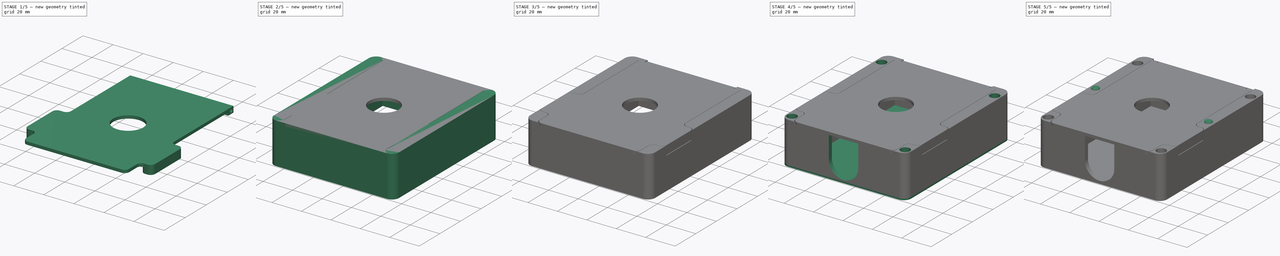
[diagram: build sequence overview — one tinted view per stage of 5, left to right]
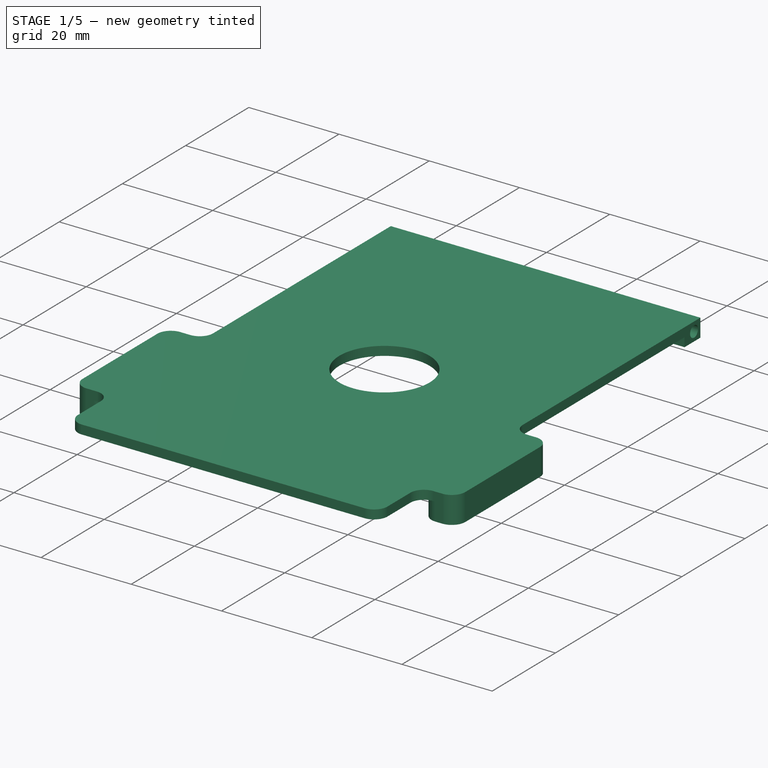
[diagram: stage 1 of 5 — iso view after this stage's code; geometry added in this stage tinted green]
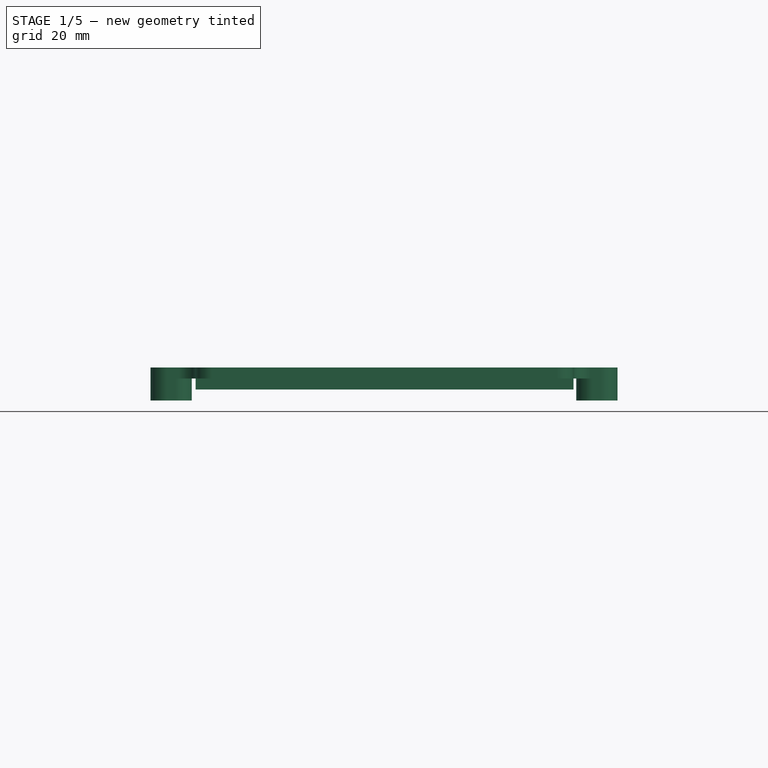
[diagram: stage 1 of 5 — front view after this stage's code; geometry added in this stage tinted green]
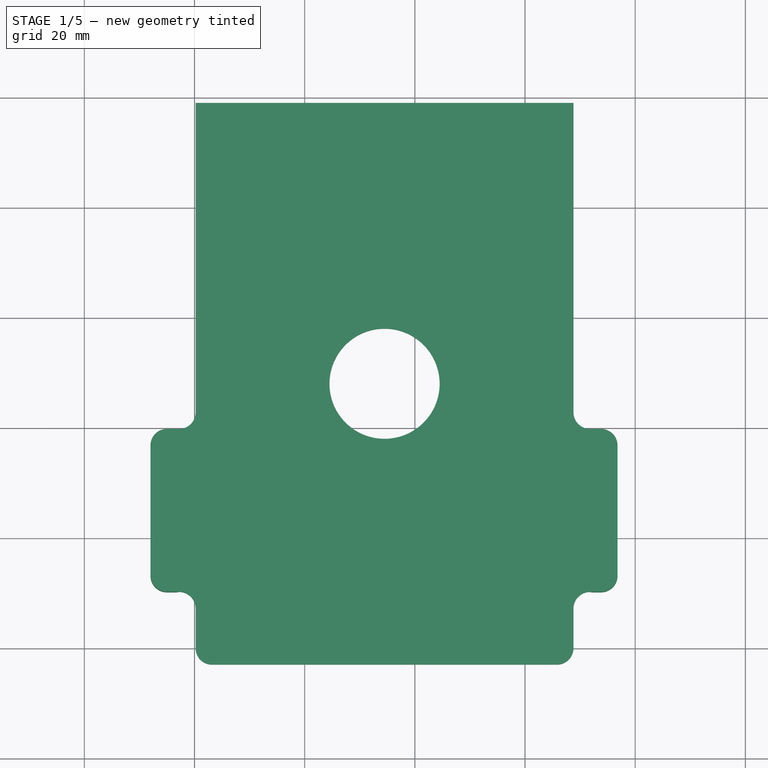
[diagram: stage 1 of 5 — top view after this stage's code; geometry added in this stage tinted green]
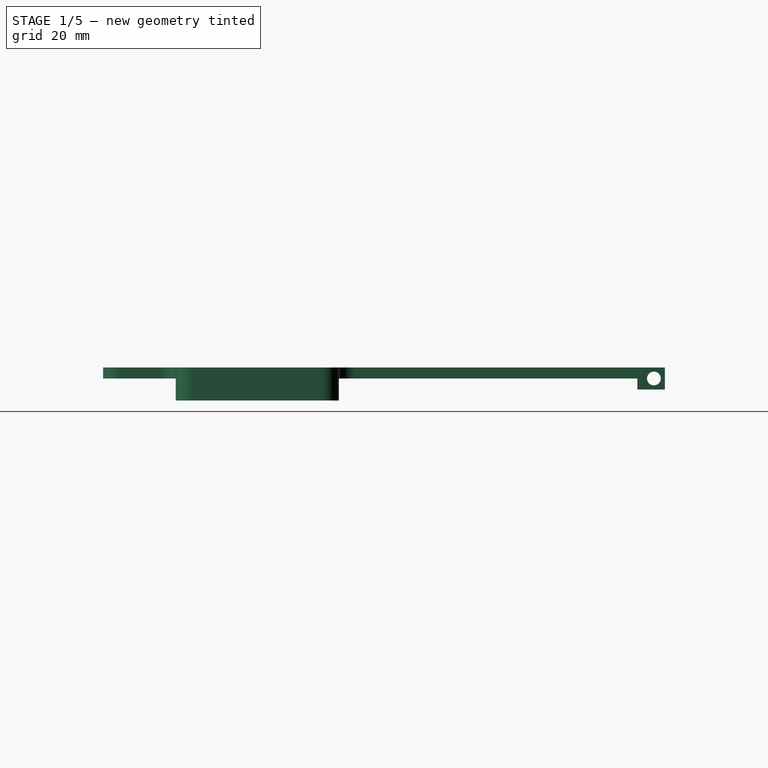
[diagram: stage 1 of 5 — right view after this stage's code; geometry added in this stage tinted green]
FCSTD DOCUMENT  (FreeCAD 1.0R38806 (Git))
Label: mtg_deck
License: All rights reserved
LicenseURL: http://en.wikipedia.org/wiki/All_rights_reserved
objects: Sketcher::SketchObject×23, PartDesign::Pocket×17, PartDesign::Plane×9, PartDesign::Pad×6, PartDesign::Body×2, Spreadsheet::Sheet×1, PartDesign::Fillet×1
note: 129 computed .brp shape members not serialized (recipe doc carries the construction recipe); baked Part::Feature solids carry a one-line shape summary decoded from their .brp

FEATURE [Spreadsheet::Sheet] Spreadsheet
  cells = A1='wall_thickness; B1(wall_thickness)==2 mm; A2='card_width; B2(card_width)==69 mm; A3='card_height; B3(card_height)==96 mm; A4='card_thickness; B4==0.65 mm; A6='cavity_a_card_count; B6=40; A7='enable_holes; B7(enable_holes)=1; A10='cavity_width; B10(cavity_width)==B2; A11='cavity_height; B11(cavity_height)==B3; A12='cavity_depth; B12(cavity_depth)==B6 * B4; A13='lid_thickness; B13(lid_thickness)==2 mm; A14='lid_clearance; B14(lid_clearance)==0.2 mm; A16='magnet_hole_diameter; B16(magnet_hole_diameter)==6.5 mm; A17='magnet_hole_depth; B17(magnet_hole_depth)==4 mm
FEATURE [Sketcher::SketchObject] Sketch
  ArcFitTolerance = 0
  AttachmentSupport = -> [XY_Plane]
  FullyConstrained = true
  MakeInternals = false
  MapMode = 5
  expr: Constraints[10] = Spreadsheet.cavity_height
  expr: Constraints[9] = Spreadsheet.cavity_width
  sketch-geometry (6):
    g0: LineSegment StartX=0 StartY=0 StartZ=0 EndX=69 EndY=0 EndZ=0
    g1: LineSegment StartX=69 StartY=0 StartZ=0 EndX=69 EndY=96 EndZ=0
    g2: LineSegment StartX=69 StartY=96 StartZ=0 EndX=0 EndY=96 EndZ=0
    g3: LineSegment StartX=0 StartY=96 StartZ=0 EndX=0 EndY=0 EndZ=0
    g4: LineSegment [constr] StartX=34.5 StartY=96 StartZ=0 EndX=34.5 EndY=0 EndZ=0
    g5: LineSegment [constr] StartX=0 StartY=48 StartZ=0 EndX=69 EndY=48 EndZ=0
  constraints (15):
    c: Coincident(g0,g1)
    c: Coincident(g1,g2)
    c: Coincident(g2,g3)
    c: Coincident(g3,g0)
    c: Horizontal(g0)
    c: Horizontal(g2)
    c: Vertical(g1)
    c: Vertical(g3)
    c: Coincident(g0,g-1)
    c: DistanceX(g0,g0) = 69
    c: DistanceY(g3,g3) = 96
    c: Symmetric(g2,g2,g4)
    c: Symmetric(g0,g0,g4)
    c: Symmetric(g3,g3,g5)
    c: Symmetric(g1,g1,g5)
FEATURE [Sketcher::SketchObject] Sketch001
  ArcFitTolerance = 0
  AttachmentSupport = -> [XY_Plane]
  FullyConstrained = true
  MakeInternals = false
  MapMode = 5
  sketch-geometry (12):
    g0: LineSegment StartX=-3 StartY=-3 StartZ=0 EndX=72 EndY=-3 EndZ=0
    g1: LineSegment StartX=77 StartY=2 StartZ=0 EndX=77 EndY=94 EndZ=0
    g2: LineSegment StartX=72 StartY=99 StartZ=0 EndX=-3 EndY=99 EndZ=0
    g3: LineSegment StartX=-8 StartY=94 StartZ=0 EndX=-8 EndY=2 EndZ=0
    g4: ArcOfCircle CenterX=72 CenterY=94 CenterZ=0 NormalX=0 NormalY=0 NormalZ=1 AngleXU=0 Radius=5 StartAngle=0 EndAngle=1.5708
    g5: GeomPoint [constr] X=77 Y=99 Z=0
    g6: ArcOfCircle CenterX=72 CenterY=2 CenterZ=0 NormalX=0 NormalY=0 NormalZ=1 AngleXU=0 Radius=5 StartAngle=4.71239 EndAngle=6.28319
    g7: GeomPoint [constr] X=77 Y=-3 Z=0
    g8: ArcOfCircle CenterX=-3 CenterY=2 CenterZ=0 NormalX=0 NormalY=0 NormalZ=1 AngleXU=0 Radius=5 StartAngle=3.14159 EndAngle=4.71239
    g9: GeomPoint [constr] X=-8 Y=-3 Z=0
    g10: ArcOfCircle CenterX=-3 CenterY=94 CenterZ=0 NormalX=0 NormalY=0 NormalZ=1 AngleXU=0 Radius=5 StartAngle=1.5708 EndAngle=3.14159
    g11: GeomPoint [constr] X=-8 Y=99 Z=0
  constraints (28):
    c: Horizontal(g0)
    c: Horizontal(g2)
    c: Vertical(g1)
    c: Vertical(g3)
    c: DistanceX(g-3,g5) = 8
    c: DistanceX(g11,g-1) = 8
    c: DistanceY(g-3,g5) = 3
    c: DistanceY(g9,g-1) = 3
    c: PointOnObject(g5,g1)
    c: PointOnObject(g5,g2)
    c: Tangent(g1,g4) = -1.5708
    c: Tangent(g2,g4) = -1.5708
    c: PointOnObject(g7,g0)
    c: PointOnObject(g7,g1)
    c: Tangent(g0,g6) = -1.5708
    c: Tangent(g1,g6) = -1.5708
    c: PointOnObject(g9,g0)
    c: PointOnObject(g9,g3)
    c: Tangent(g0,g8) = -1.5708
    c: Tangent(g3,g8) = -1.5708
    c: PointOnObject(g11,g2)
    c: PointOnObject(g11,g3)
    c: Tangent(g2,g10) = -1.5708
    c: Tangent(g3,g10) = -1.5708
    c: Radius(g4) = 5
    c: Equal(g4,g10)
    c: Equal(g4,g6)
    c: Equal(g4,g8)
FEATURE [Sketcher::SketchObject] Sketch002
  ArcFitTolerance = 0
  AttachmentSupport = -> [XZ_Plane]
  FullyConstrained = true
  MakeInternals = false
  MapMode = 5
  Placement = pos=(0,0,0) rot=(1,0,0;1.5708rad)
  expr: Constraints[7] = Spreadsheet.cavity_depth
  sketch-geometry (4):
    g0: LineSegment StartX=0 StartY=0 StartZ=0 EndX=69 EndY=0 EndZ=0
    g1: LineSegment StartX=69 StartY=0 StartZ=0 EndX=69 EndY=26 EndZ=0
    g2: LineSegment StartX=69 StartY=26 StartZ=0 EndX=0 EndY=26 EndZ=0
    g3: LineSegment StartX=0 StartY=26 StartZ=0 EndX=0 EndY=0 EndZ=0
  constraints (10):
    c: Coincident(g0,g1)
    c: Coincident(g1,g2)
    c: Coincident(g2,g3)
    c: Coincident(g3,g0)
    c: Horizontal(g2)
    c: Vertical(g1)
    c: Vertical(g3)
    c: DistanceY(g3,g3) = 26
    c: Coincident(g0,g-4)
    c: Coincident(g-1,g0)
FEATURE [PartDesign::Plane] DatumPlane  label="card_cavity_top_plane"
  AttachmentSupport = -> [Sketch002,XY_Plane]
  Length = 124.493
  MapMode = 6
  Placement = pos=(0,5.8e-15,26) rot=(0,0,1;3.14159rad)
  ResizeMode = 0
  Width = 146.493
FEATURE [PartDesign::Plane] ReferenceDatumPlane
  AttachmentSupport = -> [DatumPlane]
  Length = 124.271
  MapMode = 5
  Placement = pos=(0,5.8e-15,26) rot=(0,0,1;3.14159rad)
  ResizeMode = 0
  Width = 146.471
FEATURE [Sketcher::SketchObject] Sketch003
  ArcFitTolerance = 0
  AttachmentSupport = -> [ReferenceDatumPlane]
  FullyConstrained = true
  MakeInternals = false
  MapMode = 5
  Placement = pos=(0,5.8e-15,26) rot=(0,0,1;3.14159rad)
  expr: Constraints[63] = Spreadsheet.cavity_width - Spreadsheet.lid_clearance * 2
  expr: Constraints[67] = Spreadsheet.card_height + 6 mm
  expr: Constraints[69] = 10 mm + Spreadsheet.lid_clearance
  expr: Constraints[70] = 30 mm - Spreadsheet.lid_clearance * 2
  expr: Constraints[71] = Spreadsheet.lid_clearance
  sketch-geometry (32):
    g0: LineSegment StartX=-68.8 StartY=-99 StartZ=0 EndX=-0.2 EndY=-99 EndZ=0
    g1: LineSegment StartX=-0.2 StartY=-99 StartZ=0 EndX=-0.2 EndY=-42.8 EndZ=0
    g2: LineSegment StartX=-68.8 StartY=-42.8 StartZ=0 EndX=-68.8 EndY=-99 EndZ=0
    g3: LineSegment StartX=-71.8 StartY=-39.8 StartZ=0 EndX=-73.8 EndY=-39.8 EndZ=0
    g4: LineSegment StartX=-76.8 StartY=-36.8 StartZ=0 EndX=-76.8 EndY=-13.2 EndZ=0
    g5: LineSegment StartX=8 StartY=-13.2 StartZ=0 EndX=8 EndY=-36.8 EndZ=0
    g6: LineSegment StartX=5 StartY=-39.8 StartZ=0 EndX=2.8 EndY=-39.8 EndZ=0
    g7: ArcOfCircle CenterX=2.8 CenterY=-42.8 CenterZ=0 NormalX=0 NormalY=0 NormalZ=1 AngleXU=0 Radius=3 StartAngle=1.5708 EndAngle=3.14159
    g8: GeomPoint [constr] X=-0.2 Y=-39.8 Z=0
    g9: ArcOfCircle CenterX=5 CenterY=-36.8 CenterZ=0 NormalX=0 NormalY=0 NormalZ=1 AngleXU=0 Radius=3 StartAngle=4.71239 EndAngle=6.28319
    g10: GeomPoint [constr] X=8 Y=-39.8 Z=0
    g11: ArcOfCircle CenterX=-71.8 CenterY=-42.8 CenterZ=0 NormalX=0 NormalY=0 NormalZ=1 AngleXU=0 Radius=3 StartAngle=-9e-16 EndAngle=1.5708
    g12: GeomPoint [constr] X=-68.8 Y=-39.8 Z=0
    g13: ArcOfCircle CenterX=-73.8 CenterY=-36.8 CenterZ=0 NormalX=0 NormalY=0 NormalZ=1 AngleXU=0 Radius=3 StartAngle=3.14159 EndAngle=4.71239
    g14: GeomPoint [constr] X=-76.8 Y=-39.8 Z=0
    g15: ArcOfCircle CenterX=-73.8 CenterY=-13.2 CenterZ=0 NormalX=0 NormalY=0 NormalZ=1 AngleXU=0 Radius=3 StartAngle=1.5708 EndAngle=3.14159
    g16: GeomPoint [constr] X=-76.8 Y=-13.2 Z=0
    g17: ArcOfCircle CenterX=5 CenterY=-13.2 CenterZ=0 NormalX=0 NormalY=0 NormalZ=1 AngleXU=0 Radius=3 StartAngle=0 EndAngle=1.5708
    g18: GeomPoint [constr] X=8 Y=-13.2 Z=0
    g19: LineSegment StartX=-73.8 StartY=-10.2 StartZ=0 EndX=-71.8 EndY=-10.2 EndZ=0
    g20: LineSegment StartX=-68.8 StartY=-7.2 StartZ=0 EndX=-68.8 EndY=0 EndZ=0
    g21: LineSegment StartX=-65.8 StartY=3 StartZ=0 EndX=-3.2 EndY=3 EndZ=0
    g22: LineSegment StartX=-0.2 StartY=-4e-16 StartZ=0 EndX=-0.2 EndY=-7.2 EndZ=0
    g23: LineSegment StartX=2.8 StartY=-10.2 StartZ=0 EndX=5 EndY=-10.2 EndZ=0
    g24: ArcOfCircle CenterX=2.8 CenterY=-7.2 CenterZ=0 NormalX=0 NormalY=0 NormalZ=1 AngleXU=0 Radius=3 StartAngle=3.14159 EndAngle=4.71239
    g25: GeomPoint [constr] X=-0.2 Y=-10.2 Z=0
    g26: ArcOfCircle CenterX=-71.8 CenterY=-7.2 CenterZ=0 NormalX=0 NormalY=0 NormalZ=1 AngleXU=0 Radius=3 StartAngle=4.71239 EndAngle=6.28319
    g27: GeomPoint [constr] X=-68.8 Y=-10.2 Z=0
    g28: ArcOfCircle CenterX=-65.8 CenterY=-5e-16 CenterZ=0 NormalX=0 NormalY=0 NormalZ=1 AngleXU=0 Radius=3 StartAngle=1.5708 EndAngle=3.14159
    g29: GeomPoint [constr] X=-68.8 Y=3 Z=0
    g30: ArcOfCircle CenterX=-3.2 CenterY=-4e-16 CenterZ=0 NormalX=0 NormalY=0 NormalZ=1 AngleXU=0 Radius=3 StartAngle=0 EndAngle=1.5708
    g31: GeomPoint [constr] X=-0.2 Y=3 Z=0
  constraints (74):
    c: Coincident(g0,g1)
    c: Coincident(g2,g0)
    c: Horizontal(g0)
    c: Vertical(g1)
    c: Vertical(g2)
    c: Horizontal(g3)
    c: Vertical(g4)
    c: Vertical(g5)
    c: PointOnObject(g8,g1)
    c: PointOnObject(g8,g6)
    c: Tangent(g1,g7) = 1.5708
    c: Tangent(g6,g7) = -1.5708
    c: PointOnObject(g10,g5)
    c: PointOnObject(g10,g6)
    c: Tangent(g5,g9) = 1.5708
    c: Tangent(g6,g9) = 1.5708
    c: PointOnObject(g12,g2)
    c: PointOnObject(g12,g3)
    c: Tangent(g2,g11) = 1.5708
    c: Tangent(g3,g11) = -1.5708
    c: PointOnObject(g14,g3)
    c: PointOnObject(g14,g4)
    c: Tangent(g3,g13) = 1.5708
    c: Tangent(g4,g13) = 1.5708
    c: Horizontal(g6)
    c: Tangent(g4,g15) = 1.5708
    c: Tangent(g5,g17) = 1.5708
    c: Horizontal(g6,g3)
    c: Equal(g11,g13)
    c: Equal(g11,g15)
    c: Equal(g11,g17)
    c: Equal(g11,g9)
    c: Equal(g11,g7)
    c: Horizontal(g19)
    c: Horizontal(g21)
    c: Vertical(g22)
    c: Horizontal(g23)
    c: PointOnObject(g25,g22)
    c: PointOnObject(g25,g23)
    c: Tangent(g22,g24) = -1.5708
    c: Tangent(g23,g24) = -1.5708
    c: PointOnObject(g27,g19)
    c: PointOnObject(g27,g20)
    c: Tangent(g19,g26) = -1.5708
    c: Tangent(g20,g26) = -1.5708
    c: PointOnObject(g29,g20)
    c: PointOnObject(g29,g21)
    c: Tangent(g20,g28) = 1.5708
    c: Tangent(g21,g28) = 1.5708
    c: PointOnObject(g31,g21)
    c: PointOnObject(g31,g22)
    c: Tangent(g21,g30) = 1.5708
    c: Tangent(g22,g30) = 1.5708
    c: Vertical(g20)
    c: Horizontal(g27,g25)
    c: Equal(g26,g11)
    c: Equal(g11,g28)
    c: Equal(g30,g11)
    c: Equal(g24,g11)
    c: Tangent(g23,g17) = 1.5708
    c: Tangent(g19,g15) = 1.5708
    c: DistanceX(g-1,g18) = 8
    c: DistanceX(g16,g27) = 8
    c: DistanceX(g29,g31) = 68.6
    c: Radius(g11) = 3
    c: Vertical(g2,g20)
    c: Vertical(g1,g22)
    c: DistanceY(g0,g31) = 102
    c: DistanceY(g-1,g31) = 3
    c: DistanceY(g25,g-1) = 10.2
    c: DistanceY(g8,g25) = 29.6
    c: DistanceX(g22,g-1) = 0.2
    c: Coincident(g16,g4)
    c: Coincident(g18,g5)
FEATURE [PartDesign::Pad] Pad001
  Direction = (0,0,1)
  Length = 2
  Length2 = 10
  Placement = pos=(0,5.8e-15,26) rot=(0,0,1;3.14159rad)
  Profile = -> Sketch003
  ReferenceAxis = -> Sketch003 [N_Axis]
  Suppressed = false
  Type = 0
  expr: Length = Spreadsheet.lid_thickness
FEATURE [Sketcher::SketchObject] Sketch004
  ArcFitTolerance = 0
  AttachmentSupport = -> [DatumPlane001]
  FullyConstrained = true
  MakeInternals = false
  MapMode = 5
  Placement = pos=(0,5.8e-15,28) rot=(0,0,1;3.14159rad)
  sketch-geometry (20):
    g0: LineSegment StartX=-77 StartY=-13 StartZ=0 EndX=-77 EndY=-37 EndZ=0
    g1: LineSegment StartX=-74 StartY=-40 StartZ=0 EndX=-72 EndY=-40 EndZ=0
    g2: LineSegment StartX=-72 StartY=-10 StartZ=0 EndX=-74 EndY=-10 EndZ=0
    g3: LineSegment StartX=3 StartY=-40 StartZ=0 EndX=5 EndY=-40 EndZ=0
    g4: LineSegment StartX=8 StartY=-37 StartZ=0 EndX=8 EndY=-13 EndZ=0
    g5: LineSegment StartX=5 StartY=-10 StartZ=0 EndX=3 EndY=-10 EndZ=0
    g6: ArcOfCircle CenterX=-74 CenterY=-13 CenterZ=0 NormalX=0 NormalY=0 NormalZ=1 AngleXU=0 Radius=3 StartAngle=1.5708 EndAngle=3.14159
    g7: GeomPoint [constr] X=-77 Y=-10 Z=0
    g8: ArcOfCircle CenterX=-74 CenterY=-37 CenterZ=0 NormalX=0 NormalY=0 NormalZ=1 AngleXU=0 Radius=3 StartAngle=3.14159 EndAngle=4.71239
    g9: GeomPoint [constr] X=-77 Y=-40 Z=0
    g10: ArcOfCircle CenterX=5 CenterY=-13 CenterZ=0 NormalX=0 NormalY=0 NormalZ=1 AngleXU=0 Radius=3 StartAngle=0 EndAngle=1.5708
    g11: GeomPoint [constr] X=8 Y=-10 Z=0
    g12: ArcOfCircle CenterX=5 CenterY=-37 CenterZ=0 NormalX=0 NormalY=0 NormalZ=1 AngleXU=0 Radius=3 StartAngle=4.71239 EndAngle=6.28319
    g13: GeomPoint [constr] X=8 Y=-40 Z=0
    g14: ArcOfCircle CenterX=-72 CenterY=-7 CenterZ=0 NormalX=0 NormalY=0 NormalZ=1 AngleXU=0 Radius=3 StartAngle=4.71239 EndAngle=6.28319
    g15: ArcOfCircle CenterX=3 CenterY=-7 CenterZ=0 NormalX=0 NormalY=0 NormalZ=1 AngleXU=0 Radius=3 StartAngle=3.14159 EndAngle=4.71239
    g16: ArcOfCircle CenterX=-72 CenterY=-43 CenterZ=0 NormalX=0 NormalY=0 NormalZ=1 AngleXU=0 Radius=3 StartAngle=1e-15 EndAngle=1.5708
    g17: ArcOfCircle CenterX=3 CenterY=-43 CenterZ=0 NormalX=0 NormalY=0 NormalZ=1 AngleXU=0 Radius=3 StartAngle=1.5708 EndAngle=3.14159
    g18: LineSegment StartX=-69 StartY=-7 StartZ=0 EndX=-69 EndY=-43 EndZ=0
    g19: LineSegment StartX=0 StartY=-43 StartZ=0 EndX=0 EndY=-7 EndZ=0
  constraints (48):
    c: Vertical(g0)
    c: Horizontal(g1)
    c: Horizontal(g2)
    c: Vertical(g4)
    c: Horizontal(g3)
    c: Horizontal(g5)
    c: PointOnObject(g7,g0)
    c: PointOnObject(g7,g2)
    c: Tangent(g0,g6) = -1.5708
    c: Tangent(g2,g6) = -1.5708
    c: PointOnObject(g9,g0)
    c: PointOnObject(g9,g1)
    c: Tangent(g0,g8) = -1.5708
    c: Tangent(g1,g8) = -1.5708
    c: PointOnObject(g11,g4)
    c: PointOnObject(g11,g5)
    c: Tangent(g4,g10) = -1.5708
    c: Tangent(g5,g10) = -1.5708
    c: PointOnObject(g13,g3)
    c: PointOnObject(g13,g4)
    c: Tangent(g3,g12) = -1.5708
    c: Tangent(g4,g12) = -1.5708
    c: Equal(g8,g12)
    c: Equal(g8,g10)
    c: Equal(g8,g6)
    c: Radius(g8) = 3
    c: PointOnObject(g7,g-4)
    c: PointOnObject(g11,g-3)
    c: DistanceY(g13,g11) = 30
    c: Horizontal(g1,g3)
    c: Horizontal(g2,g5)
    c: Tangent(g15,g5) = 1.5708
    c: Tangent(g14,g2) = 1.5708
    c: Tangent(g16,g1) = 1.5708
    c: Tangent(g17,g3) = 1.5708
    c: Vertical(g18)
    c: Tangent(g19,g15) = 1.5708
    c: Vertical(g19)
    c: Tangent(g19,g17) = 1.5708
    c: Tangent(g18,g14) = 1.5708
    c: Tangent(g18,g16) = 1.5708
    c: Equal(g8,g16)
    c: Equal(g8,g14)
    c: Equal(g8,g17)
    c: Equal(g8,g15)
    c: PointOnObject(g14,g-5)
    c: PointOnObject(g15,g-2)
    c: DistanceY(g11,g-1) = 10
FEATURE [Sketcher::SketchObject] Sketch005
  ArcFitTolerance = 0
  AttachmentSupport = -> [DatumPlane001]
  ExternalGeometry = -> [Sketch002]
  FullyConstrained = true
  MakeInternals = false
  MapMode = 5
  Placement = pos=(0,5.8e-15,28) rot=(0,0,1;3.14159rad)
  sketch-geometry (8):
    g0: LineSegment StartX=-69 StartY=1 StartZ=0 EndX=-69 EndY=0 EndZ=0
    g1: LineSegment StartX=-69 StartY=0 StartZ=0 EndX=0 EndY=0 EndZ=0
    g2: LineSegment StartX=0 StartY=0 StartZ=0 EndX=0 EndY=1 EndZ=0
    g3: LineSegment StartX=-2 StartY=3 StartZ=0 EndX=-67 EndY=3 EndZ=0
    g4: ArcOfCircle CenterX=-2 CenterY=1 CenterZ=0 NormalX=0 NormalY=0 NormalZ=1 AngleXU=0 Radius=2 StartAngle=0 EndAngle=1.5708
    g5: GeomPoint [constr] X=0 Y=3 Z=0
    g6: ArcOfCircle CenterX=-67 CenterY=1 CenterZ=0 NormalX=0 NormalY=0 NormalZ=1 AngleXU=0 Radius=2 StartAngle=1.5708 EndAngle=3.14159
    g7: GeomPoint [constr] X=-69 Y=3 Z=0
  constraints (18):
    c: Coincident(g0,g1)
    c: Coincident(g1,g2)
    c: Vertical(g0)
    c: Vertical(g2)
    c: Horizontal(g3)
    c: Coincident(g1,g-1)
    c: PointOnObject(g5,g2)
    c: PointOnObject(g5,g3)
    c: Tangent(g2,g4) = -1.5708
    c: Tangent(g3,g4) = -1.5708
    c: PointOnObject(g7,g0)
    c: PointOnObject(g7,g3)
    c: Tangent(g0,g6) = -1.5708
    c: Tangent(g3,g6) = -1.5708
    c: Equal(g4,g6)
    c: Radius(g4) = 2
    c: DistanceY(g1,g3) = 3
    c: Coincident(g-3,g0)
FEATURE [Sketcher::SketchObject] Sketch006
  ArcFitTolerance = 0
  AttachmentSupport = -> [DatumPlane001]
  FullyConstrained = true
  MakeInternals = false
  MapMode = 5
  Placement = pos=(0,5.8e-15,28) rot=(0,0,1;3.14159rad)
  sketch-geometry (5):
    g0: LineSegment StartX=-65 StartY=-96 StartZ=0 EndX=-65 EndY=-99 EndZ=0
    g1: LineSegment StartX=-65 StartY=-99 StartZ=0 EndX=-4 EndY=-99 EndZ=0
    g2: LineSegment StartX=-4 StartY=-99 StartZ=0 EndX=-4 EndY=-96 EndZ=0
    g3: LineSegment StartX=-4 StartY=-96 StartZ=0 EndX=-65 EndY=-96 EndZ=0
    g4: GeomPoint X=-34.5 Y=-96 Z=0
  constraints (12):
    c: Coincident(g0,g1)
    c: Coincident(g1,g2)
    c: Coincident(g2,g3)
    c: Coincident(g3,g0)
    c: Vertical(g0)
    c: Vertical(g2)
    c: Horizontal(g1)
    c: PointOnObject(g1,g-3)
    c: PointOnObject(g2,g-4)
    c: Symmetric(g-4,g-4,g4)
    c: Symmetric(g0,g2,g4)
    c: DistanceX(g2,g-4) = 4
FEATURE [Sketcher::SketchObject] Sketch007
  ArcFitTolerance = 0
  AttachmentSupport = -> [ReferenceDatumPlane]
  FullyConstrained = true
  MakeInternals = false
  MapMode = 5
  Placement = pos=(0,5.8e-15,26) rot=(0,0,1;3.14159rad)
  sketch-geometry (4):
    g0: LineSegment StartX=-0.2 StartY=-99 StartZ=0 EndX=-0.2 EndY=-94 EndZ=0
    g1: LineSegment StartX=-0.2 StartY=-94 StartZ=0 EndX=-68.8 EndY=-94 EndZ=0
    g2: LineSegment StartX=-68.8 StartY=-94 StartZ=0 EndX=-68.8 EndY=-99 EndZ=0
    g3: LineSegment StartX=-68.8 StartY=-99 StartZ=0 EndX=-0.2 EndY=-99 EndZ=0
  constraints (11):
    c: Coincident(g0,g1)
    c: Coincident(g1,g2)
    c: Coincident(g2,g3)
    c: Coincident(g3,g0)
    c: Vertical(g0)
    c: Vertical(g2)
    c: Horizontal(g1)
    c: Horizontal(g3)
    c: Coincident(g2,g-3)
    c: DistanceY(g2,g2) = 5
    c: Vertical(g0,g-3)
FEATURE [PartDesign::Pad] Pad002
  BaseFeature = -> Pad001
  Direction = (0,0,1)
  Length = 2
  Length2 = 10
  Placement = pos=(0,5.8e-15,26) rot=(0,0,1;3.14159rad)
  Profile = -> Sketch007
  ReferenceAxis = -> Sketch007 [N_Axis]
  Reversed = true
  Suppressed = false
  Type = 0
FEATURE [Sketcher::SketchObject] Sketch008
  ArcFitTolerance = 0
  AttachmentSupport = -> [YZ_Plane001]
  ExternalGeometry = -> [Sketch007]
  FullyConstrained = true
  MakeInternals = false
  MapMode = 5
  Placement = pos=(0,0,0) rot=(0.57735,0.57735,0.57735;2.0944rad)
  sketch-geometry (1):
    g0: Circle CenterX=97 CenterY=26 CenterZ=0 NormalX=0 NormalY=0 NormalZ=1 AngleXU=0 Radius=1.25
  constraints (3):
    c: Diameter(g0) = 2.5
    c: PointOnObject(g0,g-3)
    c: DistanceX(g0,g-3) = 2
FEATURE [PartDesign::Pocket] Pocket004  label="hinge_hole"
  BaseFeature = -> Pad002
  Direction = (-1,0,0)
  Length = 5
  Length2 = 5
  Placement = pos=(0,5.8e-15,26) rot=(0,0,1;3.14159rad)
  Profile = -> Sketch008
  ReferenceAxis = -> Sketch008 [N_Axis]
  Reversed = true
  Suppressed = false
  Type = 1
FEATURE [Sketcher::SketchObject] Sketch009
  ArcFitTolerance = 0
  AttachmentSupport = -> [ReferenceDatumPlane]
  FullyConstrained = true
  MakeInternals = false
  MapMode = 5
  Placement = pos=(0,5.8e-15,26) rot=(0,0,1;3.14159rad)
  expr: Constraints[48] = Spreadsheet.magnet_hole_diameter
  expr: Constraints[49] = Spreadsheet.magnet_hole_diameter
  sketch-geometry (26):
    g0: LineSegment StartX=5 StartY=-10.2 StartZ=0 EndX=3.5 EndY=-10.2 EndZ=0
    g1: LineSegment StartX=0.5 StartY=-13.2 StartZ=0 EndX=0.5 EndY=-36.8 EndZ=0
    g2: LineSegment StartX=3.5 StartY=-39.8 StartZ=0 EndX=5 EndY=-39.8 EndZ=0
    g3: LineSegment StartX=8 StartY=-36.8 StartZ=0 EndX=8 EndY=-13.2 EndZ=0
    g4: LineSegment StartX=-72.3 StartY=-10.2 StartZ=0 EndX=-73.8 EndY=-10.2 EndZ=0
    g5: LineSegment StartX=-76.8 StartY=-13.2 StartZ=0 EndX=-76.8 EndY=-36.8 EndZ=0
    g6: LineSegment StartX=-73.8 StartY=-39.8 StartZ=0 EndX=-72.3 EndY=-39.8 EndZ=0
    g7: LineSegment StartX=-69.3 StartY=-36.8 StartZ=0 EndX=-69.3 EndY=-13.2 EndZ=0
    g8: ArcOfCircle CenterX=5 CenterY=-13.2 CenterZ=0 NormalX=0 NormalY=0 NormalZ=1 AngleXU=0 Radius=3 StartAngle=-9e-16 EndAngle=1.5708
    g9: GeomPoint [constr] X=8 Y=-10.2 Z=0
    g10: ArcOfCircle CenterX=3.5 CenterY=-13.2 CenterZ=0 NormalX=0 NormalY=0 NormalZ=1 AngleXU=0 Radius=3 StartAngle=1.5708 EndAngle=3.14159
    g11: GeomPoint [constr] X=0.5 Y=-10.2 Z=0
    g12: ArcOfCircle CenterX=5 CenterY=-36.8 CenterZ=0 NormalX=0 NormalY=0 NormalZ=1 AngleXU=0 Radius=3 StartAngle=4.71239 EndAngle=6.28319
    g13: GeomPoint [constr] X=8 Y=-39.8 Z=0
    g14: ArcOfCircle CenterX=3.5 CenterY=-36.8 CenterZ=0 NormalX=0 NormalY=0 NormalZ=1 AngleXU=0 Radius=3 StartAngle=3.14159 EndAngle=4.71239
    g15: GeomPoint [constr] X=0.5 Y=-39.8 Z=0
    g16: ArcOfCircle CenterX=-72.3 CenterY=-36.8 CenterZ=0 NormalX=0 NormalY=0 NormalZ=1 AngleXU=0 Radius=3 StartAngle=4.71239 EndAngle=6.28319
    g17: GeomPoint [constr] X=-69.3 Y=-39.8 Z=0
    g18: ArcOfCircle CenterX=-73.8 CenterY=-36.8 CenterZ=0 NormalX=0 NormalY=0 NormalZ=1 AngleXU=0 Radius=3 StartAngle=3.14159 EndAngle=4.71239
    g19: GeomPoint [constr] X=-76.8 Y=-39.8 Z=0
    g20: ArcOfCircle CenterX=-73.8 CenterY=-13.2 CenterZ=0 NormalX=0 NormalY=0 NormalZ=1 AngleXU=0 Radius=3 StartAngle=1.5708 EndAngle=3.14159
    g21: GeomPoint [constr] X=-76.8 Y=-10.2 Z=0
    g22: ArcOfCircle CenterX=-72.3 CenterY=-13.2 CenterZ=0 NormalX=0 NormalY=0 NormalZ=1 AngleXU=0 Radius=3 StartAngle=1e-16 EndAngle=1.5708
    g23: GeomPoint [constr] X=-69.3 Y=-10.2 Z=0
    g24: Circle CenterX=4 CenterY=-20.2 CenterZ=0 NormalX=0 NormalY=0 NormalZ=1 AngleXU=0 Radius=3.25
    g25: Circle CenterX=-72.8 CenterY=-20.2 CenterZ=0 NormalX=0 NormalY=0 NormalZ=1 AngleXU=0 Radius=3.25
  constraints (57):
    c: Horizontal(g0)
    c: Horizontal(g2)
    c: Vertical(g1)
    c: Horizontal(g4)
    c: Horizontal(g6)
    c: Vertical(g5)
    c: Vertical(g7)
    c: PointOnObject(g9,g0)
    c: PointOnObject(g9,g3)
    c: Tangent(g0,g8) = -1.5708
    c: Tangent(g3,g8) = -1.5708
    c: PointOnObject(g11,g0)
    c: PointOnObject(g11,g1)
    c: Tangent(g0,g10) = -1.5708
    c: Tangent(g1,g10) = -1.5708
    c: PointOnObject(g13,g2)
    c: PointOnObject(g13,g3)
    c: Tangent(g2,g12) = -1.5708
    c: Tangent(g3,g12) = -1.5708
    c: PointOnObject(g15,g1)
    c: PointOnObject(g15,g2)
    c: Tangent(g1,g14) = -1.5708
    c: Tangent(g2,g14) = -1.5708
    c: PointOnObject(g17,g6)
    c: PointOnObject(g17,g7)
    c: Tangent(g6,g16) = -1.5708
    c: Tangent(g7,g16) = -1.5708
    c: PointOnObject(g19,g5)
    c: PointOnObject(g19,g6)
    c: Tangent(g5,g18) = -1.5708
    c: Tangent(g6,g18) = -1.5708
    c: PointOnObject(g21,g4)
    c: PointOnObject(g21,g5)
    c: Tangent(g4,g20) = -1.5708
    c: Tangent(g5,g20) = -1.5708
    c: PointOnObject(g23,g4)
    c: PointOnObject(g23,g7)
    c: Tangent(g4,g22) = -1.5708
    c: Tangent(g7,g22) = -1.5708
    c: Equal(g12,g20)
    c: Equal(g10,g12)
    c: Equal(g14,g12)
    c: Equal(g16,g18)
    c: Equal(g22,g20)
    c: Coincident(g3,g-8)
    c: Coincident(g0,g-9)
    c: Coincident(g2,g-7)
    c: Coincident(g5,g-5)
    c: Diameter(g25) = 6.5
    c: Diameter(g24) = 6.5
    c: Horizontal(g24,g25)
    c: DistanceX(g24,g9) = 4
    c: DistanceX(g21,g25) = 4
    c: DistanceY(g25,g21) = 10
    c: DistanceX(g5,g7) = 7.5
    c: DistanceX(g1,g3) = 7.5
    c: Coincident(g-6,g6)
FEATURE [PartDesign::Pad] Pad003
  BaseFeature = -> Pocket004
  Direction = (0,0,1)
  Length = 4
  Length2 = 10
  Placement = pos=(0,5.8e-15,26) rot=(0,0,1;3.14159rad)
  Profile = -> Sketch009
  ReferenceAxis = -> Sketch009 [N_Axis]
  Reversed = true
  Suppressed = false
  Type = 0
  expr: Length = Spreadsheet.magnet_hole_depth
FEATURE [Sketcher::SketchObject] Sketch018
  ArcFitTolerance = 0
  AttachmentSupport = -> [ReferenceDatumPlane]
  FullyConstrained = true
  MakeInternals = false
  MapMode = 5
  Placement = pos=(0,5.8e-15,26) rot=(0,0,1;3.14159rad)
  expr: Constraints[0] = Spreadsheet.cavity_height / 2
  expr: Constraints[1] = Spreadsheet.cavity_width / 2
  sketch-geometry (1):
    g0: Circle CenterX=-34.5 CenterY=-48 CenterZ=0 NormalX=0 NormalY=0 NormalZ=1 AngleXU=0 Radius=10
  constraints (3):
    c: DistanceY(g0,g-1) = 48
    c: DistanceX(g0,g-1) = 34.5
    c: Diameter(g0) = 20
FEATURE [PartDesign::Pocket] Pocket012
  BaseFeature = -> Pad003
  Direction = (0,0,-1)
  Length = 5
  Length2 = 5
  Placement = pos=(0,5.8e-15,26) rot=(0,0,1;3.14159rad)
  Profile = -> Sketch018
  ReferenceAxis = -> Sketch018 [N_Axis]
  Reversed = true
  Suppressed = false
  Type = 1
  expr: Suppressed = Spreadsheet.enable_holes != 0 ? 0 : 1
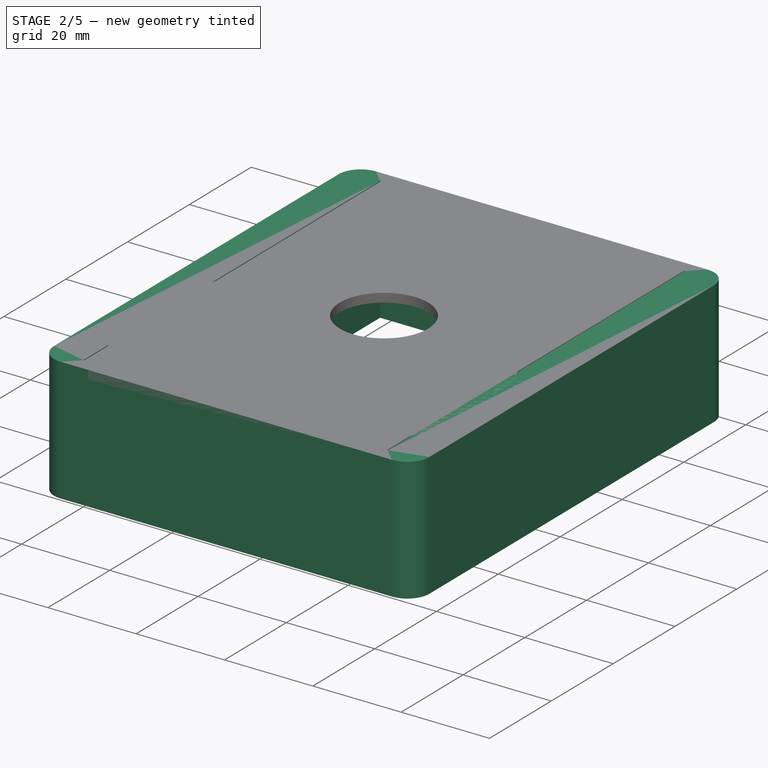
[diagram: stage 2 of 5 — iso view after this stage's code; geometry added in this stage tinted green]
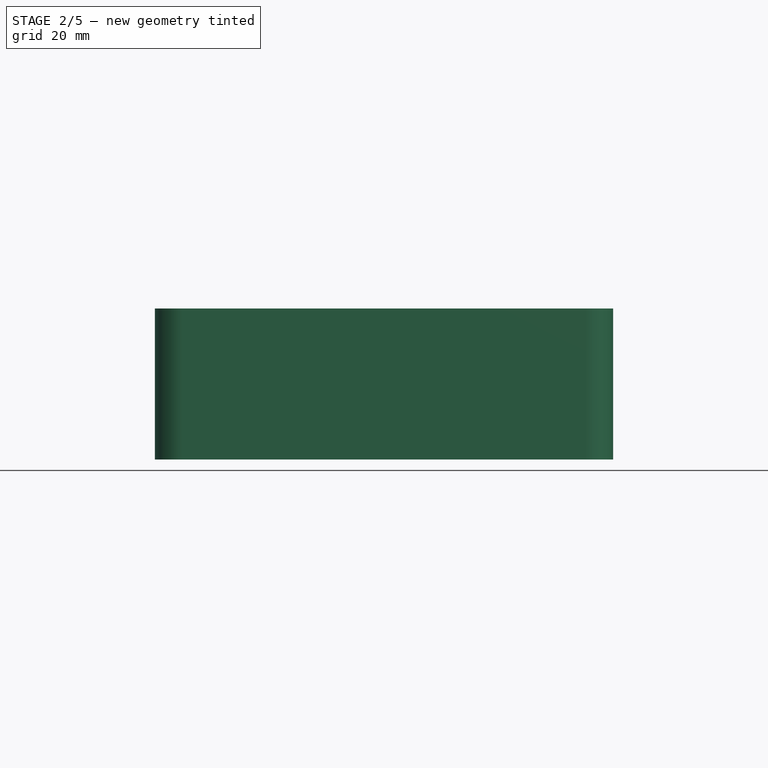
[diagram: stage 2 of 5 — front view after this stage's code; geometry added in this stage tinted green]
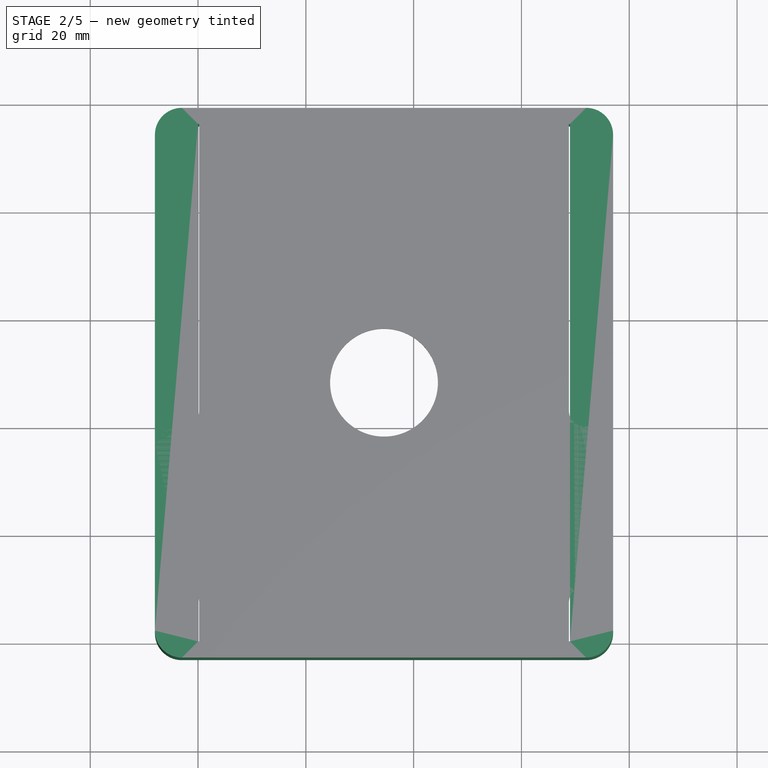
[diagram: stage 2 of 5 — top view after this stage's code; geometry added in this stage tinted green]
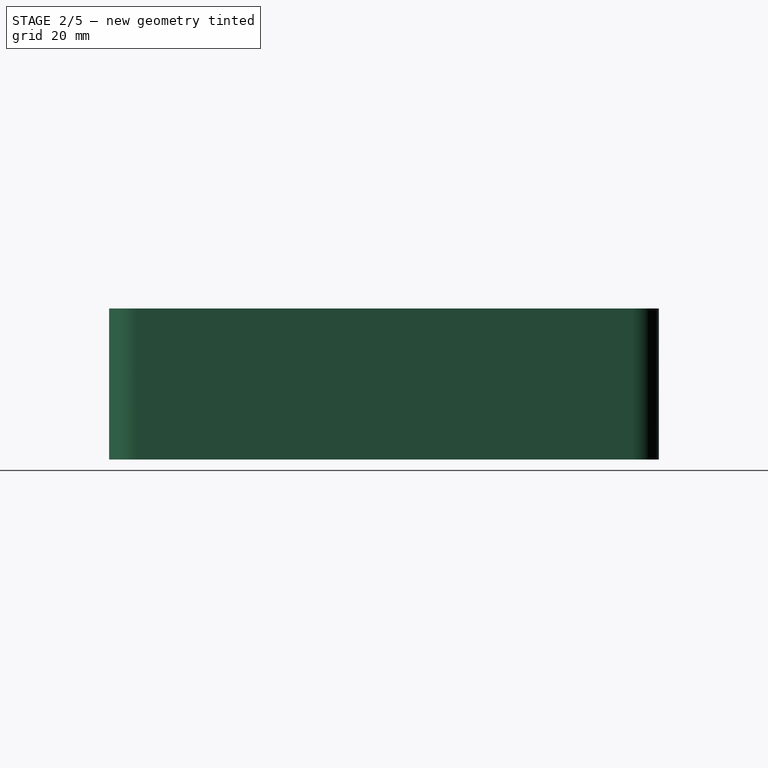
[diagram: stage 2 of 5 — right view after this stage's code; geometry added in this stage tinted green]
FEATURE [PartDesign::Plane] DatumPlane001  label="box_top_plane"
  AttachmentOffset = pos=(0,0,2) rot=(0,0,1;0rad)
  AttachmentSupport = -> [DatumPlane,Sketch002]
  Length = 124.493
  MapMode = 53
  Placement = pos=(0,5.8e-15,28) rot=(0,0,1;3.14159rad)
  ResizeMode = 0
  Width = 146.493
  expr: .AttachmentOffset.Base.z = Spreadsheet.lid_thickness
FEATURE [PartDesign::Pad] Pad
  Direction = (0,0,1)
  Length = 28
  Length2 = 5
  Profile = -> Sketch001
  ReferenceAxis = -> Sketch001 [N_Axis]
  Suppressed = false
  Type = 3
  UpToFace = -> DatumPlane001
  UpToShape = -> [DatumPlane001]
  expr: Length = Spreadsheet.cavity_depth + 2 mm
FEATURE [PartDesign::Pocket] Pocket
  BaseFeature = -> Pad
  Direction = (0,0,-1)
  Length = 5
  Length2 = 5
  Profile = -> Sketch
  ReferenceAxis = -> Sketch [N_Axis]
  Reversed = true
  Suppressed = false
  Type = 1
FEATURE [Sketcher::SketchObject] Sketch019
  ArcFitTolerance = 0
  AttachmentSupport = -> [YZ_Plane001]
  ExternalGeometry = -> [Sketch008]
  FullyConstrained = true
  MakeInternals = false
  MapMode = 5
  Placement = pos=(0,0,0) rot=(0.57735,0.57735,0.57735;2.0944rad)
  sketch-geometry (7):
    g0: ArcOfCircle CenterX=97 CenterY=26 CenterZ=0 NormalX=0 NormalY=0 NormalZ=1 AngleXU=0 Radius=2 StartAngle=3.14159 EndAngle=7.85398
    g1: LineSegment StartX=95 StartY=26 StartZ=0 EndX=93 EndY=26 EndZ=0
    g2: LineSegment StartX=93 StartY=26 StartZ=0 EndX=93 EndY=21 EndZ=0
    g3: LineSegment StartX=93 StartY=21 StartZ=0 EndX=103 EndY=21 EndZ=0
    g4: LineSegment StartX=103 StartY=21 StartZ=0 EndX=103 EndY=31 EndZ=0
    g5: LineSegment StartX=103 StartY=31 StartZ=0 EndX=97 EndY=31 EndZ=0
    g6: LineSegment StartX=97 StartY=31 StartZ=0 EndX=97 EndY=28 EndZ=0
  constraints (21):
    c: Coincident(g1,g0)
    c: Horizontal(g1)
    c: Coincident(g2,g1)
    c: Vertical(g2)
    c: Coincident(g3,g2)
    c: Horizontal(g3)
    c: Coincident(g4,g3)
    c: Vertical(g4)
    c: Coincident(g5,g4)
    c: Horizontal(g5)
    c: Coincident(g6,g5)
    c: Coincident(g6,g0)
    c: Vertical(g0,g0)
    c: Horizontal(g0,g0)
    c: Radius(g0) = 2
    c: DistanceX(g1,g1) = 2
    c: Vertical(g6)
    c: DistanceX(g3,g3) = 10
    c: DistanceY(g4,g4) = 10
    c: DistanceY(g6,g6) = 3
    c: Coincident(g0,g-3)
FEATURE [PartDesign::Pocket] Pocket013
  BaseFeature = -> Pocket012
  Direction = (-1,0,0)
  Length = 5
  Length2 = 5
  Placement = pos=(0,5.8e-15,26) rot=(0,0,1;3.14159rad)
  Profile = -> Sketch019
  ReferenceAxis = -> Sketch019 [N_Axis]
  Reversed = true
  Suppressed = false
  Type = 1
FEATURE [PartDesign::Body] Body  label="base"
  AllowCompound = false
  Group = -> [Sketch,Sketch001,Sketch002,Pad,Pocket,DatumPlane,DatumPlane002,Sketch004,Pocket001,DatumPlane001,Sketch005,Pocket002,Sketch006,Pocket003,Sketch010,Pocket005,Pad004,Sketch011,Pocket006,Sketch012,Pocket007,DatumPlane003,Sketch013,Pocket008,Sketch014,Pocket009,Sketch015,Pocket010,Sketch016,Pad005,Fillet,Sketch017,Pocket011,DatumPlane004,Sketch020,DatumPlane005,Pocket014]
  Origin = -> Origin
  Tip = -> Pocket014
FEATURE [PartDesign::Plane] DatumPlane006
  AttachmentSupport = -> [YZ_Plane001,Sketch003]
  Length = 140.214
  MapMode = 53
  Placement = pos=(0.2,0,0) rot=(0.57735,0.57735,0.57735;2.0944rad)
  ResizeMode = 0
  Width = 69.2136
FEATURE [Sketcher::SketchObject] Sketch021
  ArcFitTolerance = 1e-06
  AttachmentSupport = -> [DatumPlane006]
  ExternalGeometry = -> [Sketch003,Sketch008]
  FullyConstrained = true
  MakeInternals = false
  MapMode = 5
  Placement = pos=(0.2,0,0) rot=(0.57735,0.57735,0.57735;2.0944rad)
  sketch-geometry (5):
    g0: ArcOfCircle CenterX=97 CenterY=26 CenterZ=0 NormalX=0 NormalY=0 NormalZ=1 AngleXU=0 Radius=2.2 StartAngle=1.5708 EndAngle=3.14159
    g1: LineSegment StartX=94.8 StartY=26 StartZ=0 EndX=94.8 EndY=22 EndZ=0
    g2: LineSegment StartX=94.8 StartY=22 StartZ=0 EndX=101 EndY=22 EndZ=0
    g3: LineSegment StartX=101 StartY=22 StartZ=0 EndX=101 EndY=28.2 EndZ=0
    g4: LineSegment StartX=101 StartY=28.2 StartZ=0 EndX=97 EndY=28.2 EndZ=0
  constraints (13):
    c: Coincident(g0,g-4)
    c: Vertical(g1)
    c: Coincident(g2,g1)
    c: Horizontal(g2)
    c: Coincident(g3,g2)
    c: Vertical(g3)
    c: Coincident(g4,g3)
    c: Horizontal(g4)
    c: Tangent(g4,g0) = -1.5708
    c: Tangent(g1,g0) = -1.5708
    c: Radius(g0) = 2.2
    c: DistanceX(g4,g4) = 4
    c: DistanceY(g1,g1) = 4
FEATURE [PartDesign::Pocket] Pocket015
  BaseFeature = -> Pocket013
  Direction = (-1,0,0)
  Length = 4.2
  Length2 = 5
  Placement = pos=(0,5.8e-15,26) rot=(0,0,1;3.14159rad)
  Profile = -> Sketch021
  ReferenceAxis = -> Sketch021 [N_Axis]
  Reversed = true
  Suppressed = false
  Type = 0
FEATURE [PartDesign::Plane] DatumPlane007
  AttachmentSupport = -> [DatumPlane006,Sketch003]
  Length = 140.214
  MapMode = 53
  Placement = pos=(68.8,0,0) rot=(0.57735,0.57735,0.57735;2.0944rad)
  ResizeMode = 0
  Width = 69.2136
FEATURE [Sketcher::SketchObject] Sketch022
  ArcFitTolerance = 1e-06
  AttachmentSupport = -> [DatumPlane007]
  ExternalGeometry = -> [Sketch021]
  FullyConstrained = true
  MakeInternals = false
  MapMode = 5
  Placement = pos=(68.8,0,0) rot=(0.57735,0.57735,0.57735;2.0944rad)
  sketch-geometry (5):
    g0: ArcOfCircle CenterX=97 CenterY=26 CenterZ=0 NormalX=0 NormalY=0 NormalZ=1 AngleXU=0 Radius=2.2 StartAngle=1.5708 EndAngle=3.14159
    g1: LineSegment StartX=97 StartY=28.2 StartZ=0 EndX=99.8 EndY=28.2 EndZ=0
    g2: LineSegment StartX=99.8 StartY=28.2 StartZ=0 EndX=99.8 EndY=23.2 EndZ=0
    g3: LineSegment StartX=99.8 StartY=23.2 StartZ=0 EndX=94.8 EndY=23.2 EndZ=0
    g4: LineSegment StartX=94.8 StartY=23.2 StartZ=0 EndX=94.8 EndY=26 EndZ=0
  constraints (13):
    c: Coincident(g1,g2)
    c: Vertical(g2)
    c: Coincident(g2,g3)
    c: Horizontal(g3)
    c: Coincident(g3,g4)
    c: Coincident(g4,g0)
    c: Vertical(g4)
    c: DistanceY(g2,g2) = 5
    c: DistanceX(g3,g3) = 5
    c: Horizontal(g1)
    c: Coincident(g0,g-3)
    c: Coincident(g0,g-3)
    c: Tangent(g1,g0) = 1.5708
FEATURE [PartDesign::Pocket] Pocket016
  BaseFeature = -> Pocket015
  Direction = (-1,0,0)
  Length = 4.2
  Length2 = 5
  Placement = pos=(0,5.8e-15,26) rot=(0,0,1;3.14159rad)
  Profile = -> Sketch022
  ReferenceAxis = -> Sketch022 [N_Axis]
  Suppressed = false
  Type = 0
FEATURE [PartDesign::Body] Body001  label="lid"
  AllowCompound = false
  Group = -> [ReferenceDatumPlane,Sketch003,Pad001,Sketch007,Pad002,Sketch008,Pocket004,Sketch009,Pad003,Sketch018,Pocket012,Sketch019,Pocket013,DatumPlane006,Sketch021,Pocket015,DatumPlane007,Sketch022,Pocket016]
  Origin = -> Origin001
  Tip = -> Pocket016
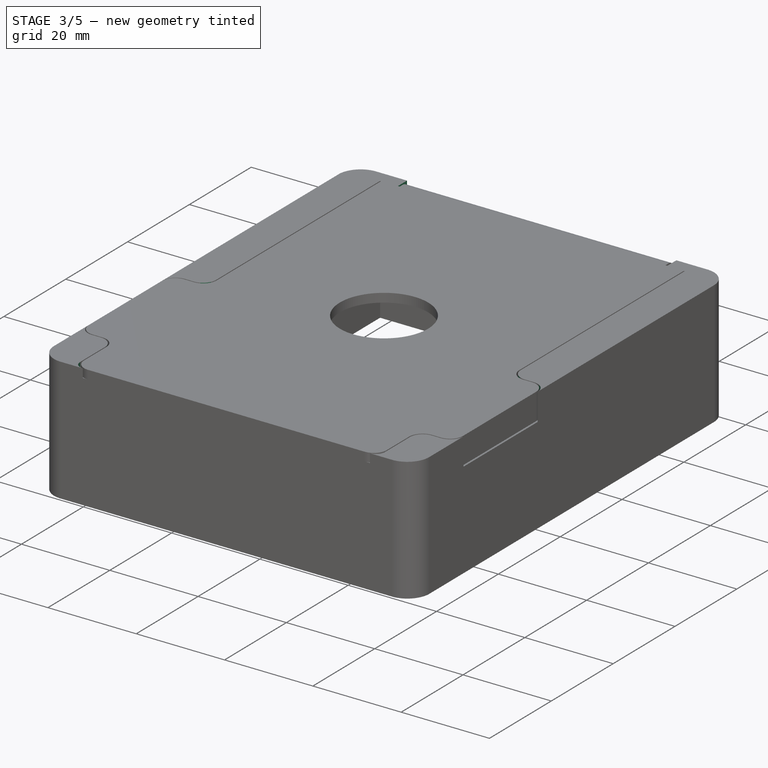
[diagram: stage 3 of 5 — iso view after this stage's code; geometry added in this stage tinted green]
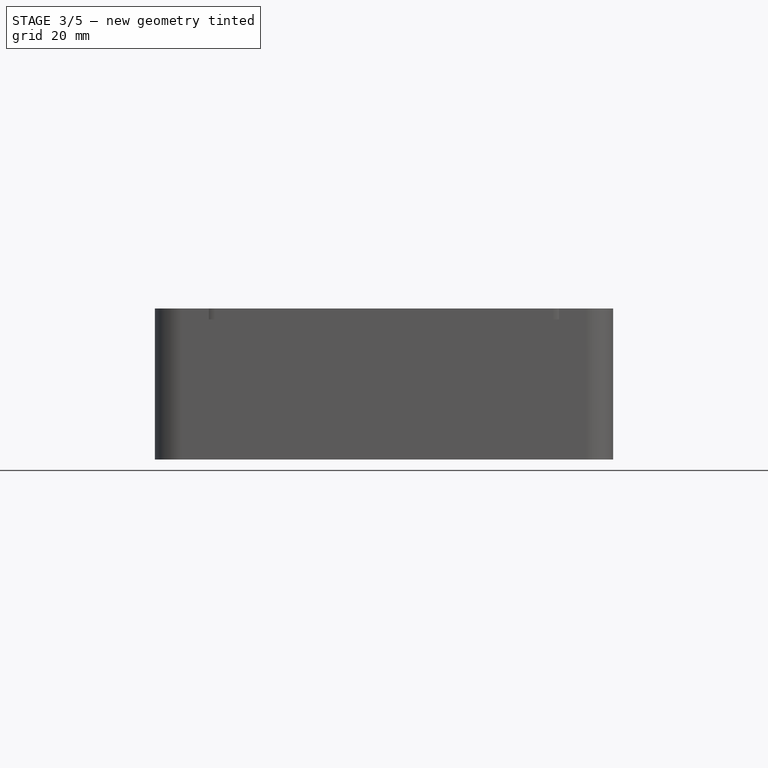
[diagram: stage 3 of 5 — front view after this stage's code; geometry added in this stage tinted green]
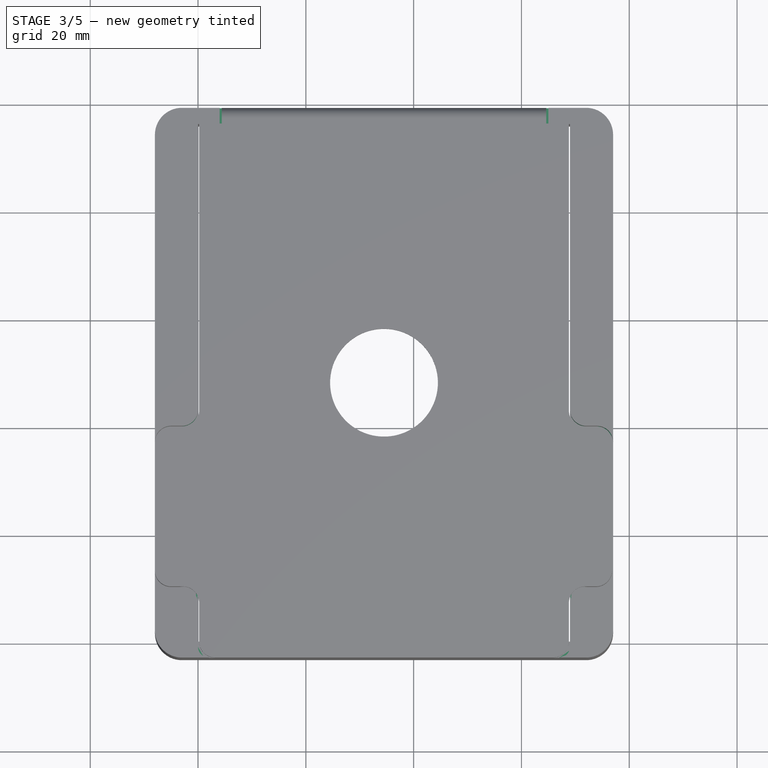
[diagram: stage 3 of 5 — top view after this stage's code; geometry added in this stage tinted green]
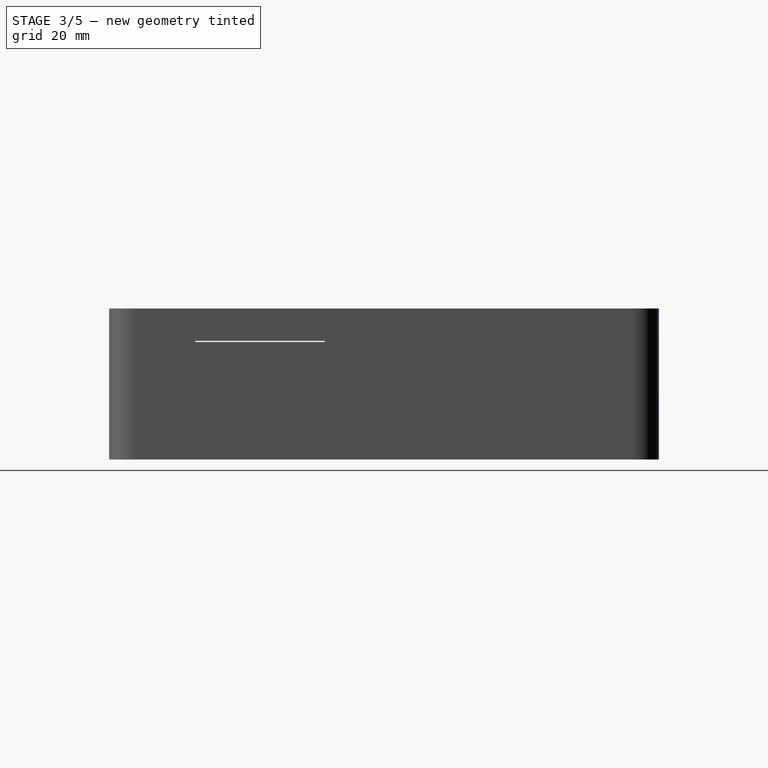
[diagram: stage 3 of 5 — right view after this stage's code; geometry added in this stage tinted green]
FEATURE [PartDesign::Plane] DatumPlane002
  AttachmentOffset = pos=(0,0,-4.2) rot=(0,0,1;0rad)
  AttachmentSupport = -> [DatumPlane]
  Length = 124.493
  MapMode = 5
  Placement = pos=(0,5.8e-15,21.8) rot=(0,0,1;3.14159rad)
  ResizeMode = 0
  Width = 146.493
  expr: .AttachmentOffset.Base.z = -(Spreadsheet.magnet_hole_depth + Spreadsheet.lid_clearance)
FEATURE [PartDesign::Pocket] Pocket001
  BaseFeature = -> Pocket
  Direction = (0,0,-1)
  Length = 8.5
  Length2 = 5
  Profile = -> Sketch004
  ReferenceAxis = -> Sketch004 [N_Axis]
  Suppressed = false
  Type = 3
  UpToFace = -> DatumPlane002
  expr: Length = Spreadsheet.magnet_hole_diameter + Spreadsheet.lid_thickness
FEATURE [PartDesign::Pocket] Pocket002
  BaseFeature = -> Pocket001
  Direction = (0,0,-1)
  Length = 0
  Length2 = 5
  Profile = -> Sketch005
  ReferenceAxis = -> Sketch005 [N_Axis]
  Suppressed = false
  Type = 3
  UpToFace = -> DatumPlane
FEATURE [PartDesign::Pocket] Pocket003
  BaseFeature = -> Pocket002
  Direction = (0,0,-1)
  Length = 5
  Length2 = 5
  Profile = -> Sketch006
  ReferenceAxis = -> Sketch006 [N_Axis]
  Suppressed = false
  Type = 0
FEATURE [Sketcher::SketchObject] Sketch010
  ArcFitTolerance = 0
  AttachmentSupport = -> [DatumPlane002]
  FullyConstrained = true
  MakeInternals = false
  MapMode = 5
  Placement = pos=(0,5.8e-15,21.8) rot=(0,0,1;3.14159rad)
  expr: Constraints[0] = Spreadsheet.magnet_hole_diameter
  expr: Constraints[1] = Spreadsheet.magnet_hole_diameter
  sketch-geometry (2):
    g0: Circle CenterX=4 CenterY=-20 CenterZ=0 NormalX=0 NormalY=0 NormalZ=1 AngleXU=0 Radius=3.25
    g1: Circle CenterX=-73 CenterY=-20 CenterZ=0 NormalX=0 NormalY=0 NormalZ=1 AngleXU=0 Radius=3.25
  constraints (6):
    c: Diameter(g0) = 6.5
    c: Diameter(g1) = 6.5
    c: Horizontal(g0,g1)
    c: DistanceY(g0,g-5) = 10
    c: DistanceX(g-4,g1) = 4
    c: DistanceX(g0,g-3) = 4
FEATURE [PartDesign::Pocket] Pocket005
  BaseFeature = -> Pocket003
  Direction = (0,0,-1)
  Length = 4
  Length2 = 5
  Profile = -> Sketch010
  ReferenceAxis = -> Sketch010 [N_Axis]
  Suppressed = false
  Type = 0
  expr: Length = Spreadsheet.magnet_hole_depth
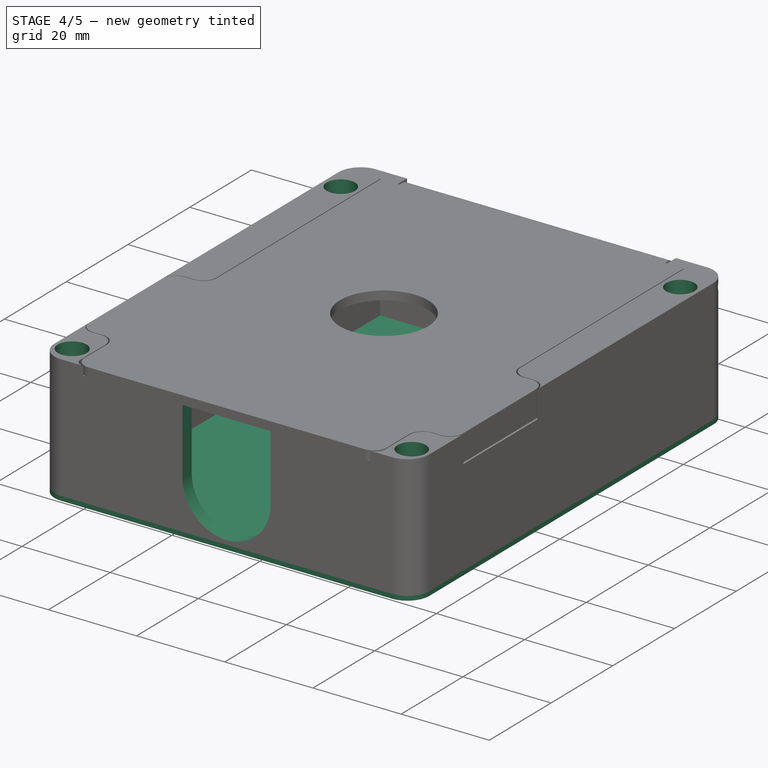
[diagram: stage 4 of 5 — iso view after this stage's code; geometry added in this stage tinted green]
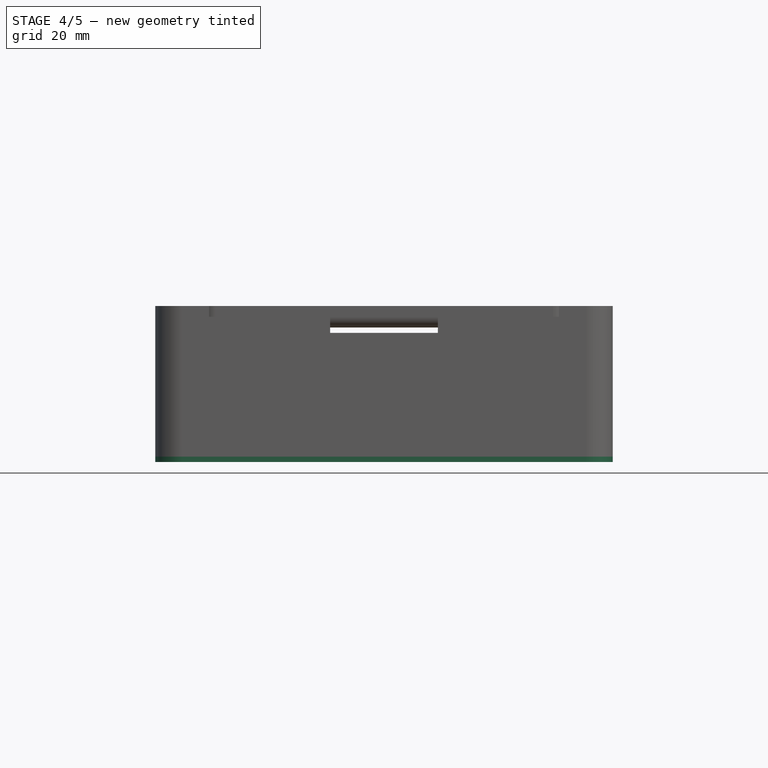
[diagram: stage 4 of 5 — front view after this stage's code; geometry added in this stage tinted green]
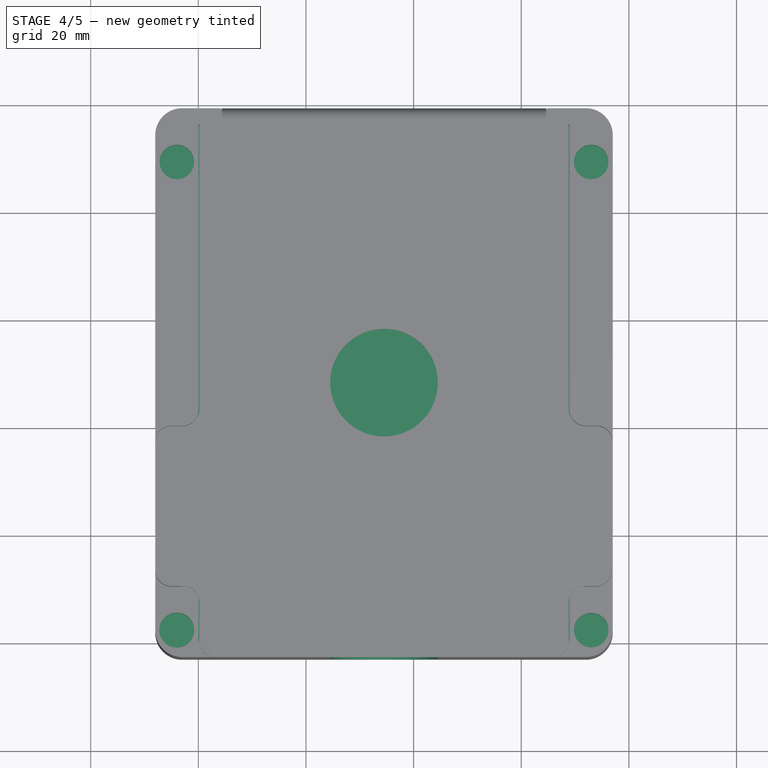
[diagram: stage 4 of 5 — top view after this stage's code; geometry added in this stage tinted green]
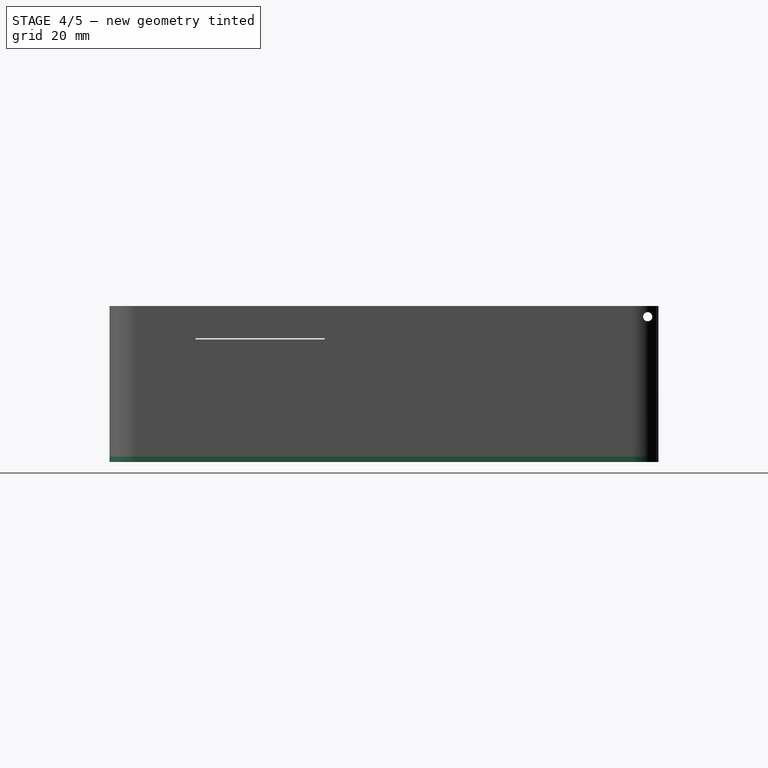
[diagram: stage 4 of 5 — right view after this stage's code; geometry added in this stage tinted green]
FEATURE [Sketcher::SketchObject] Sketch011
  ArcFitTolerance = 0
  AttachmentSupport = -> [DatumPlane001]
  FullyConstrained = true
  MakeInternals = false
  MapMode = 5
  Placement = pos=(0,5.8e-15,28) rot=(0,0,1;3.14159rad)
  expr: Constraints[0] = Spreadsheet.magnet_hole_diameter
  sketch-geometry (4):
    g0: Circle CenterX=-73 CenterY=-2 CenterZ=0 NormalX=0 NormalY=0 NormalZ=1 AngleXU=0 Radius=3.2
    g1: Circle CenterX=4 CenterY=-2 CenterZ=0 NormalX=0 NormalY=0 NormalZ=1 AngleXU=0 Radius=3.25
    g2: Circle CenterX=4 CenterY=-89 CenterZ=0 NormalX=0 NormalY=0 NormalZ=1 AngleXU=0 Radius=3.2
    g3: Circle CenterX=-73 CenterY=-89 CenterZ=0 NormalX=0 NormalY=0 NormalZ=1 AngleXU=0 Radius=3.2
  constraints (12):
    c: Diameter(g1) = 6.5
    c: Diameter(g0) = 6.4
    c: Diameter(g3) = 6.4
    c: Diameter(g2) = 6.4
    c: Horizontal(g2,g3)
    c: Vertical(g3,g0)
    c: Vertical(g1,g2)
    c: Horizontal(g1,g0)
    c: DistanceX(g1,g-4) = 4
    c: DistanceY(g1,g-3) = 5
    c: DistanceX(g-5,g0) = 4
    c: DistanceY(g-6,g2) = 10
FEATURE [Sketcher::SketchObject] Sketch012
  ArcFitTolerance = 0
  AttachmentSupport = -> [YZ_Plane]
  ExternalGeometry = -> [Sketch002]
  FullyConstrained = true
  MakeInternals = false
  MapMode = 5
  Placement = pos=(0,0,0) rot=(0.57735,0.57735,0.57735;2.0944rad)
  sketch-geometry (1):
    g0: Circle CenterX=97 CenterY=26 CenterZ=0 NormalX=0 NormalY=0 NormalZ=1 AngleXU=0 Radius=0.85
  constraints (3):
    c: DistanceX(g0,g-3) = 2
    c: Diameter(g0) = 1.7
    c: Horizontal(g-4,g0)
FEATURE [PartDesign::Plane] DatumPlane003  label="box_bottom"
  AttachmentOffset = pos=(0,0,-1) rot=(0,0,1;0rad)
  AttachmentSupport = -> [XY_Plane]
  Length = 124.493
  MapMode = 2
  Placement = pos=(0,0,-1) rot=(0,0,1;0rad)
  ResizeMode = 0
  Width = 146.493
FEATURE [PartDesign::Pad] Pad004
  BaseFeature = -> Pocket005
  Direction = (0,0,1)
  Length = 2
  Length2 = 10
  Profile = -> Sketch001
  ReferenceAxis = -> Sketch001 [N_Axis]
  Reversed = true
  Suppressed = false
  Type = 3
  UpToFace = -> DatumPlane003 [Plane]
FEATURE [PartDesign::Pocket] Pocket006
  BaseFeature = -> Pad004
  Direction = (0,0,-1)
  Length = 4
  Length2 = 5
  Profile = -> Sketch011
  ReferenceAxis = -> Sketch011 [N_Axis]
  Suppressed = false
  Type = 0
  expr: Length = Spreadsheet.magnet_hole_depth
FEATURE [PartDesign::Pocket] Pocket007
  BaseFeature = -> Pocket006
  Direction = (-1,0,0)
  Length = 50
  Length2 = 150
  Profile = -> Sketch012
  ReferenceAxis = -> Sketch012 [N_Axis]
  Suppressed = false
  Type = 4
FEATURE [Sketcher::SketchObject] Sketch013
  ArcFitTolerance = 0
  AttachmentSupport = -> [DatumPlane003]
  ExternalGeometry = -> [Pocket007]
  FullyConstrained = true
  MakeInternals = false
  MapMode = 5
  Placement = pos=(0,0,-1) rot=(0,0,1;0rad)
  expr: Constraints[4] = Spreadsheet.magnet_hole_diameter
  sketch-geometry (4):
    g0: Circle CenterX=-4 CenterY=2 CenterZ=0 NormalX=0 NormalY=0 NormalZ=1 AngleXU=0 Radius=3.2
    g1: Circle CenterX=73 CenterY=2 CenterZ=0 NormalX=0 NormalY=0 NormalZ=1 AngleXU=0 Radius=3.2
    g2: Circle CenterX=73 CenterY=89 CenterZ=0 NormalX=0 NormalY=0 NormalZ=1 AngleXU=0 Radius=3.25
    g3: Circle CenterX=-4 CenterY=89 CenterZ=0 NormalX=0 NormalY=0 NormalZ=1 AngleXU=0 Radius=3.2
  constraints (8):
    c: Coincident(g0,g-5)
    c: Coincident(g1,g-6)
    c: Coincident(g2,g-3)
    c: Coincident(g3,g-4)
    c: Diameter(g2) = 6.5
    c: Diameter(g3) = 6.4
    c: Diameter(g0) = 6.4
    c: Diameter(g1) = 6.4
FEATURE [PartDesign::Pocket] Pocket008
  BaseFeature = -> Pocket007
  Direction = (0,0,-1)
  Length = 4
  Length2 = 5
  Profile = -> Sketch013
  ReferenceAxis = -> Sketch013 [N_Axis]
  Reversed = true
  Suppressed = false
  Type = 0
  expr: Length = Spreadsheet.magnet_hole_depth
FEATURE [Sketcher::SketchObject] Sketch014
  ArcFitTolerance = 0
  AttachmentSupport = -> [XZ_Plane]
  ExternalGeometry = -> [Sketch002]
  FullyConstrained = true
  MakeInternals = false
  MapMode = 5
  Placement = pos=(0,0,0) rot=(1,0,0;1.5708rad)
  sketch-geometry (5):
    g0: LineSegment StartX=24.5 StartY=26 StartZ=0 EndX=24.5 EndY=11 EndZ=0
    g1: LineSegment StartX=44.5 StartY=11 StartZ=0 EndX=44.5 EndY=26 EndZ=0
    g2: LineSegment StartX=44.5 StartY=26 StartZ=0 EndX=24.5 EndY=26 EndZ=0
    g3: ArcOfCircle CenterX=34.5 CenterY=11 CenterZ=0 NormalX=0 NormalY=0 NormalZ=1 AngleXU=0 Radius=10 StartAngle=3.14159 EndAngle=6.28319
    g4: GeomPoint X=34.5 Y=26 Z=0
  constraints (11):
    c: Coincident(g1,g2)
    c: Coincident(g2,g0)
    c: Vertical(g0)
    c: Vertical(g1)
    c: Horizontal(g2)
    c: Tangent(g3,g0) = -1.5708
    c: Tangent(g1,g3) = -1.5708
    c: Symmetric(g0,g1,g4)
    c: DistanceX(g0,g1) = 20
    c: DistanceY(g1,g1) = 15
    c: Symmetric(g-3,g-3,g4)
FEATURE [PartDesign::Pocket] Pocket009
  BaseFeature = -> Pocket008
  Direction = (0,1,-2e-16)
  Length = 5
  Length2 = 5
  Profile = -> Sketch014
  ReferenceAxis = -> Sketch014 [N_Axis]
  Reversed = true
  Suppressed = false
  Type = 1
  expr: Suppressed = Spreadsheet.enable_holes != 0 ? 0 : 1
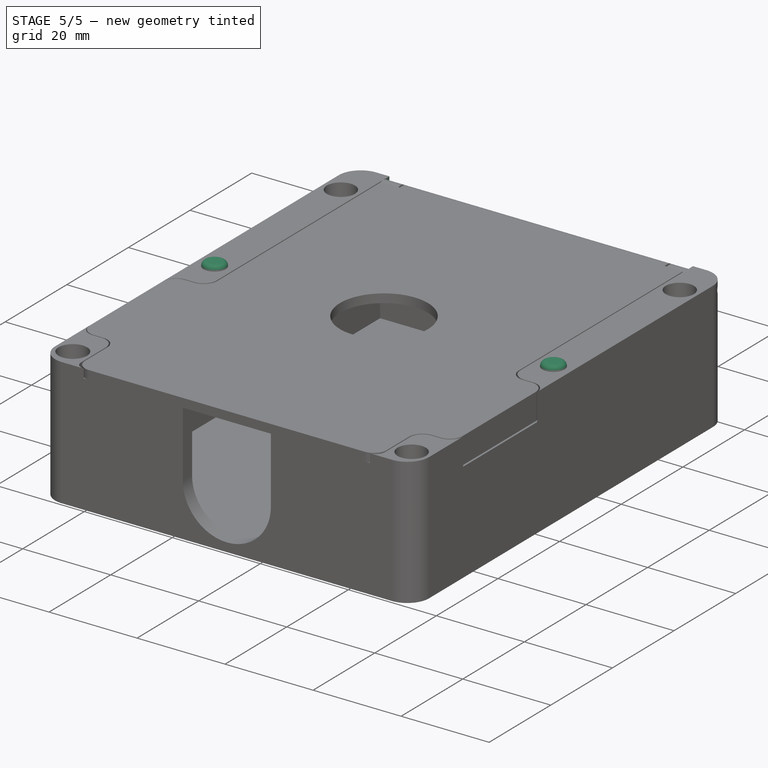
[diagram: stage 5 of 5 — iso view after this stage's code; geometry added in this stage tinted green]
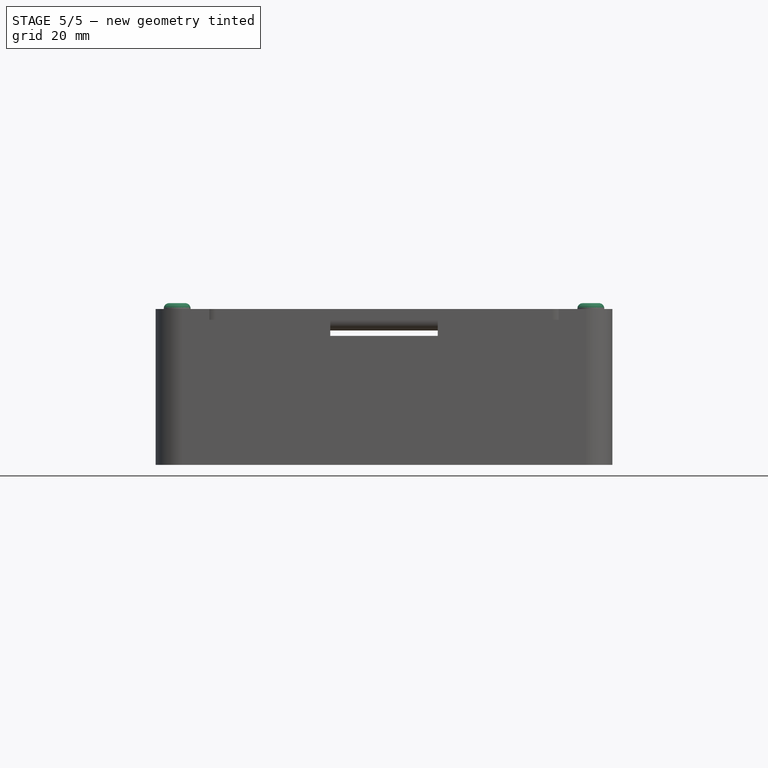
[diagram: stage 5 of 5 — front view after this stage's code; geometry added in this stage tinted green]
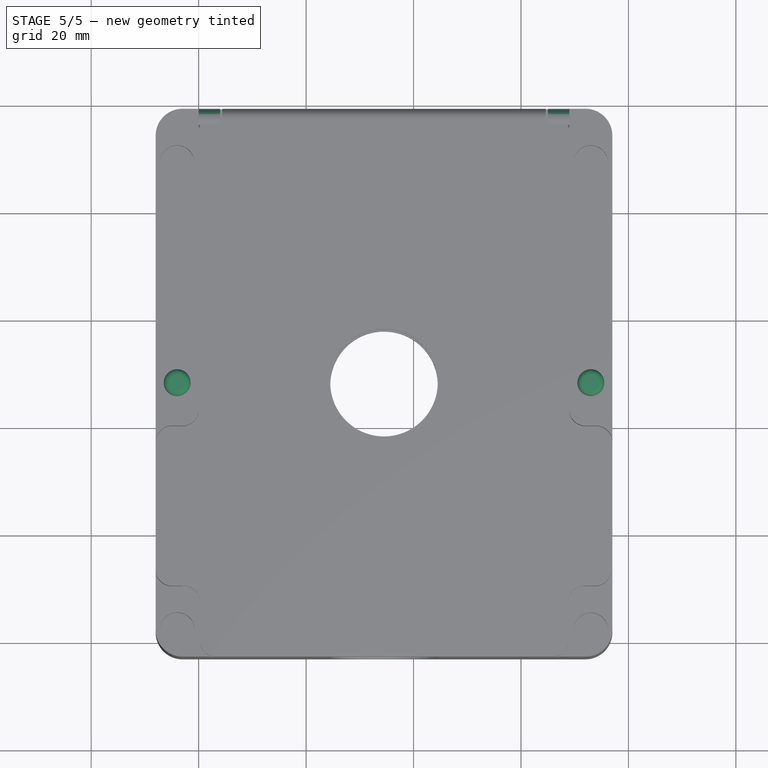
[diagram: stage 5 of 5 — top view after this stage's code; geometry added in this stage tinted green]
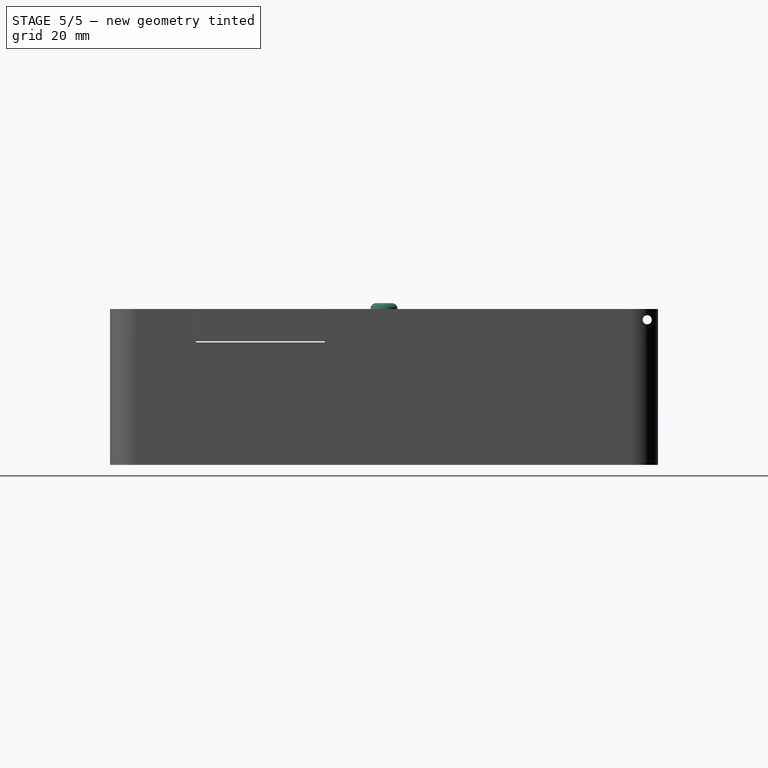
[diagram: stage 5 of 5 — right view after this stage's code; geometry added in this stage tinted green]
FEATURE [Sketcher::SketchObject] Sketch015
  ArcFitTolerance = 0
  AttachmentSupport = -> [DatumPlane003]
  FullyConstrained = true
  MakeInternals = false
  MapMode = 5
  Placement = pos=(0,0,-1) rot=(0,0,1;0rad)
  sketch-geometry (3):
    g0: Circle CenterX=34.5 CenterY=48 CenterZ=0 NormalX=0 NormalY=0 NormalZ=1 AngleXU=0 Radius=10
    g1: GeomPoint X=34.5 Y=0 Z=0
    g2: GeomPoint X=69 Y=48 Z=0
  constraints (5):
    c: Symmetric(g-3,g-1,g1)
    c: Vertical(g1,g0)
    c: Symmetric(g-3,g-3,g2)
    c: Horizontal(g2,g0)
    c: Diameter(g0) = 20
FEATURE [PartDesign::Pocket] Pocket010
  BaseFeature = -> Pocket009
  Direction = (0,0,-1)
  Length = 5
  Length2 = 5
  Profile = -> Sketch015
  ReferenceAxis = -> Sketch015 [N_Axis]
  Reversed = true
  Suppressed = false
  Type = 1
  expr: Suppressed = Spreadsheet.enable_holes != 0 ? 0 : 1
FEATURE [Sketcher::SketchObject] Sketch016
  ArcFitTolerance = 0
  AttachmentSupport = -> [DatumPlane001]
  FullyConstrained = true
  MakeInternals = false
  MapMode = 5
  Placement = pos=(0,5.8e-15,28) rot=(0,0,1;3.14159rad)
  sketch-geometry (3):
    g0: Circle CenterX=-73 CenterY=-48 CenterZ=0 NormalX=0 NormalY=0 NormalZ=1 AngleXU=0 Radius=2.5
    g1: Circle CenterX=4 CenterY=-48 CenterZ=0 NormalX=0 NormalY=0 NormalZ=1 AngleXU=0 Radius=2.5
    g2: GeomPoint [constr] X=8 Y=-48 Z=0
  constraints (7):
    c: DistanceX(g-4,g0) = 4
    c: DistanceX(g1,g-3) = 4
    c: Horizontal(g1,g0)
    c: Symmetric(g-3,g-3,g2)
    c: Horizontal(g2,g1)
    c: Diameter(g1) = 5
    c: Equal(g1,g0)
FEATURE [PartDesign::Pad] Pad005
  BaseFeature = -> Pocket010
  Direction = (0,0,1)
  Length = 1.1
  Length2 = 10
  Profile = -> Sketch016
  ReferenceAxis = -> Sketch016 [N_Axis]
  Suppressed = false
  Type = 0
  expr: Length = 1.1 mm
FEATURE [PartDesign::Fillet] Fillet
  Base = -> Pad005 [Face75,Face79]
  BaseFeature = -> Pad005
  Radius = 1
  SupportTransform = false
  Suppressed = false
  UseAllEdges = false
FEATURE [Sketcher::SketchObject] Sketch017
  ArcFitTolerance = 0
  AttachmentSupport = -> [DatumPlane003]
  FullyConstrained = true
  MakeInternals = false
  MapMode = 5
  Placement = pos=(0,0,-1) rot=(0,0,1;0rad)
  sketch-geometry (2):
    g0: Circle CenterX=-4 CenterY=48 CenterZ=0 NormalX=0 NormalY=0 NormalZ=1 AngleXU=0 Radius=3
    g1: Circle CenterX=73 CenterY=48 CenterZ=0 NormalX=0 NormalY=0 NormalZ=1 AngleXU=0 Radius=3
  constraints (4):
    c: Coincident(g0,g-4)
    c: Coincident(g1,g-3)
    c: Equal(g0,g1)
    c: Diameter(g1) = 6
FEATURE [PartDesign::Pocket] Pocket011
  BaseFeature = -> Fillet
  Direction = (0,0,-1)
  Length = 2
  Length2 = 5
  Profile = -> Sketch017
  ReferenceAxis = -> Sketch017 [N_Axis]
  Reversed = true
  Suppressed = false
  Type = 0
  expr: Length = 2 mm
FEATURE [PartDesign::Plane] DatumPlane004
  AttachmentSupport = -> [YZ_Plane,Sketch002]
  Length = 140.381
  MapMode = 53
  Placement = pos=(69,-7.7e-15,7.7e-15) rot=(0.57735,0.57735,0.57735;2.0944rad)
  ResizeMode = 0
  Width = 70.481
FEATURE [Sketcher::SketchObject] Sketch020
  ArcFitTolerance = 1e-06
  AttachmentSupport = -> [DatumPlane004]
  ExternalGeometry = -> [Sketch012]
  FullyConstrained = true
  MakeInternals = false
  MapMode = 5
  Placement = pos=(69,-7.7e-15,7.7e-15) rot=(0.57735,0.57735,0.57735;2.0944rad)
  sketch-geometry (6):
    g0: LineSegment StartX=95 StartY=26 StartZ=0 EndX=89 EndY=26 EndZ=0
    g1: LineSegment StartX=89 StartY=26 StartZ=0 EndX=89 EndY=36 EndZ=0
    g2: LineSegment StartX=89 StartY=36 StartZ=0 EndX=104 EndY=36 EndZ=0
    g3: LineSegment StartX=104 StartY=36 StartZ=0 EndX=104 EndY=26 EndZ=0
    g4: LineSegment StartX=104 StartY=26 StartZ=0 EndX=99 EndY=26 EndZ=0
    g5: ArcOfCircle CenterX=97 CenterY=26 CenterZ=0 NormalX=0 NormalY=0 NormalZ=1 AngleXU=0 Radius=2 StartAngle=0 EndAngle=3.14159
  constraints (18):
    c: Horizontal(g0)
    c: Coincident(g1,g0)
    c: Vertical(g1)
    c: Coincident(g2,g1)
    c: Horizontal(g2)
    c: Coincident(g3,g2)
    c: Vertical(g3)
    c: Coincident(g4,g3)
    c: Horizontal(g4)
    c: Coincident(g5,g-3)
    c: Coincident(g5,g0)
    c: Coincident(g5,g4)
    c: Horizontal(g4,g5)
    c: Horizontal(g0,g5)
    c: DistanceX(g4,g4) = 5
    c: DistanceY(g3,g3) = 10
    c: DistanceX(g2,g2) = 15
    c: Radius(g5) = 2
FEATURE [PartDesign::Plane] DatumPlane005
  AttachmentSupport = -> [YZ_Plane,Sketch002]
  Length = 140.381
  MapMode = 53
  Placement = pos=(2.9e-15,0,0) rot=(0.57735,0.57735,0.57735;2.0944rad)
  ResizeMode = 0
  Width = 70.481
FEATURE [PartDesign::Pocket] Pocket014
  BaseFeature = -> Pocket011
  Direction = (-1,0,0)
  Length = 0
  Length2 = 5
  Profile = -> Sketch020
  ReferenceAxis = -> Sketch020 [N_Axis]
  Suppressed = false
  Type = 3
  UpToFace = -> DatumPlane005
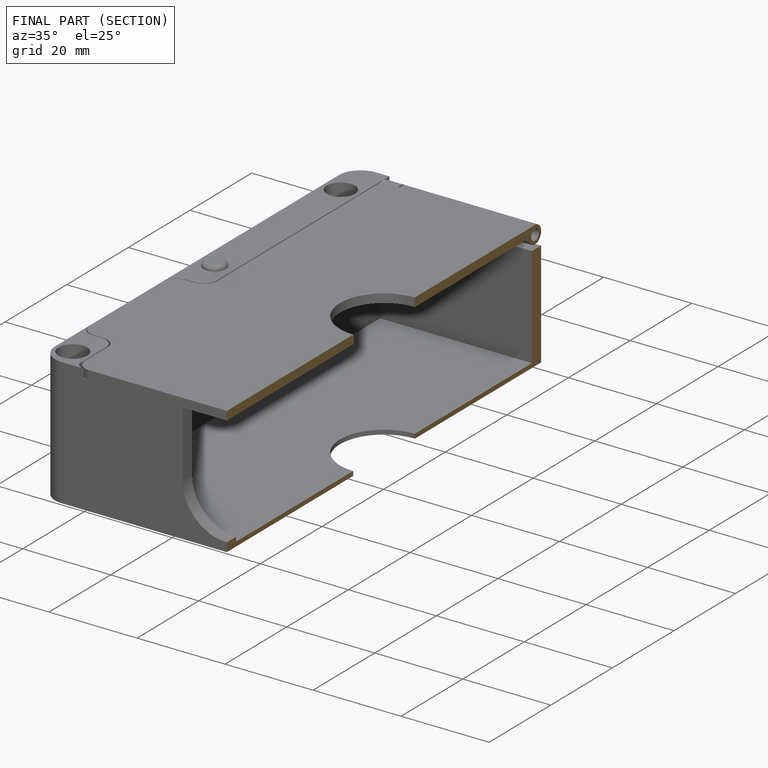
[diagram: finished part — half-section view (interior)]
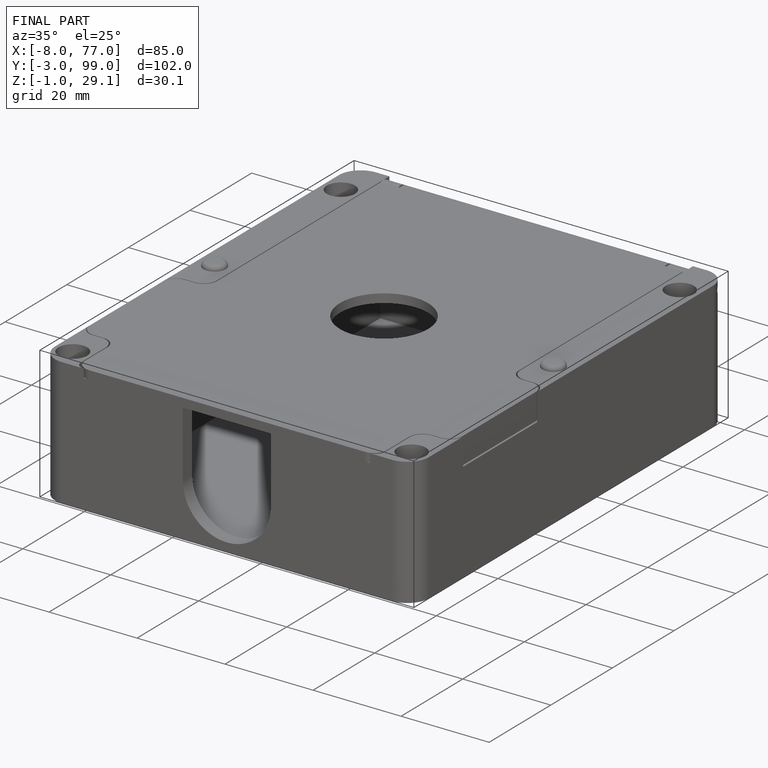
[diagram: finished part — iso view with bounding-box wireframe]
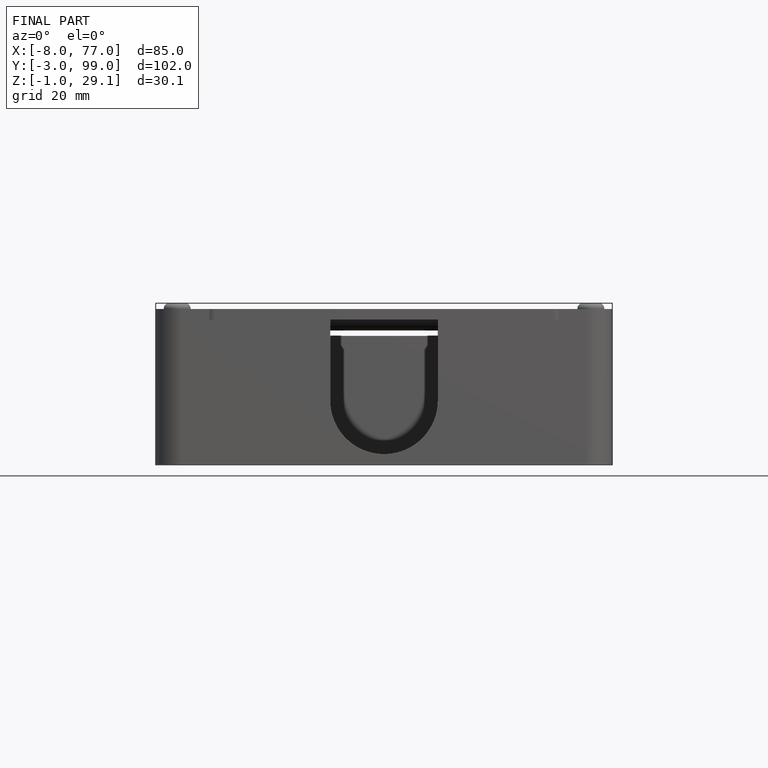
[diagram: finished part — front view with bounding-box wireframe]
